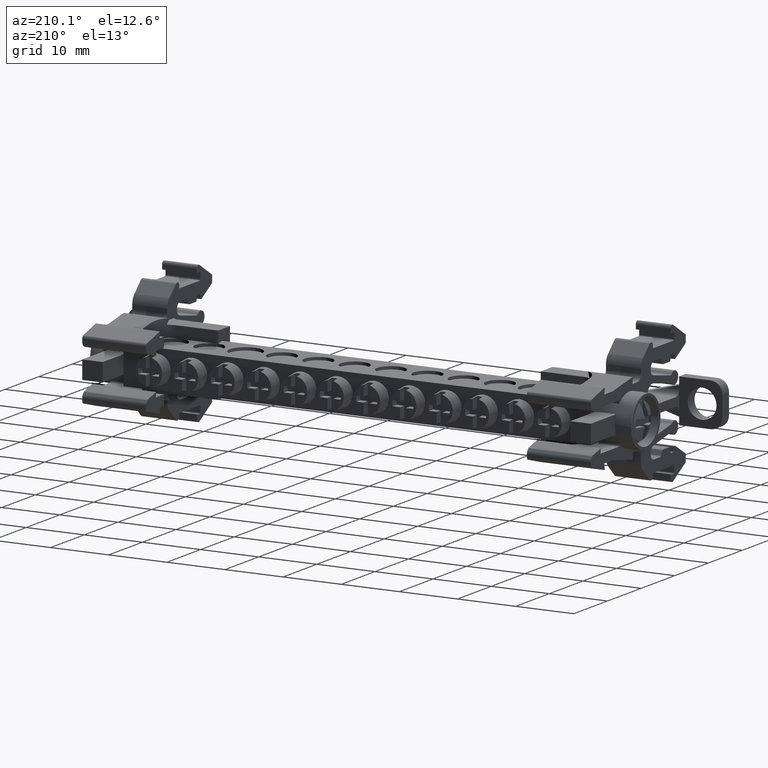
[diagram: clean part render]
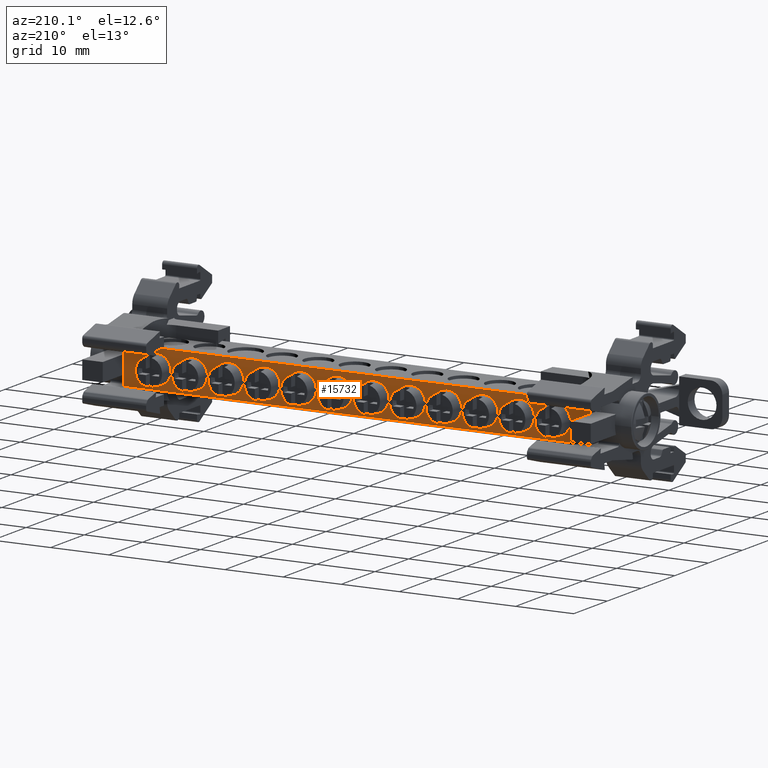
[diagram: same view with one face highlighted and labeled with its STEP entity id]
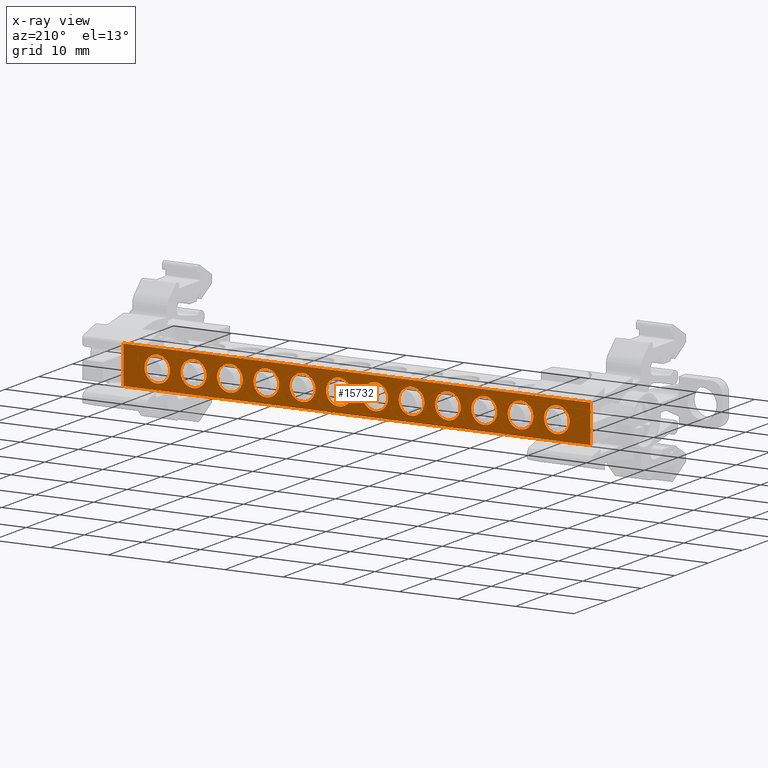
[diagram: x-ray of the same camera — body ghosted, the highlighted face saturated]
A machine part, auxiliary view. The second image highlights one B-rep face of the part: STEP entity #15732.
The next image is the same camera in x-ray: the body ghosted, the highlighted face saturated — about 0% of this face is hidden behind the body in this view.
In plain terms, the highlighted planar face has unit normal (0, -1, -0).
Its self-contained STEP definition (entity closure, byte-faithful):
#62 = EDGE_CURVE ( 'NONE', #4079, #7022, #719, .T. ) ;
#69 = EDGE_CURVE ( 'NONE', #4053, #4079, #8789, .T. ) ;
#73 = EDGE_CURVE ( 'NONE', #7029, #7011, #8797, .T. ) ;
#93 = EDGE_CURVE ( 'NONE', #7013, #7044, #730, .T. ) ;
#97 = EDGE_CURVE ( 'NONE', #7020, #7042, #8791, .T. ) ;
#99 = EDGE_CURVE ( 'NONE', #7012, #7013, #8795, .T. ) ;
#106 = EDGE_CURVE ( 'NONE', #4077, #7039, #8796, .T. ) ;
#110 = EDGE_CURVE ( 'NONE', #7039, #7026, #718, .T. ) ;
#113 = EDGE_CURVE ( 'NONE', #7011, #7016, #720, .T. ) ;
#122 = EDGE_CURVE ( 'NONE', #7051, #4072, #8780, .T. ) ;
#125 = EDGE_CURVE ( 'NONE', #4088, #6999, #8781, .T. ) ;
#131 = EDGE_CURVE ( 'NONE', #4072, #7000, #731, .T. ) ;
#135 = EDGE_CURVE ( 'NONE', #7004, #4085, #8787, .T. ) ;
#140 = EDGE_CURVE ( 'NONE', #7027, #7037, #8798, .T. ) ;
#141 = EDGE_CURVE ( 'NONE', #4085, #7034, #732, .T. ) ;
#148 = EDGE_CURVE ( 'NONE', #7037, #6982, #721, .T. ) ;
#149 = EDGE_CURVE ( 'NONE', #7024, #7027, #8782, .T. ) ;
#154 = EDGE_CURVE ( 'NONE', #7053, #6997, #723, .T. ) ;
#155 = EDGE_CURVE ( 'NONE', #7042, #7033, #724, .T. ) ;
#156 = EDGE_CURVE ( 'NONE', #6982, #7024, #725, .T. ) ;
#159 = EDGE_CURVE ( 'NONE', #7043, #6984, #726, .T. ) ;
#163 = EDGE_CURVE ( 'NONE', #7057, #7053, #8788, .T. ) ;
#178 = EDGE_CURVE ( 'NONE', #6984, #4088, #727, .T. ) ;
#574 =( BOUNDED_CURVE ( )  B_SPLINE_CURVE ( 3, ( #8261, #8312, #8317, #8314 ),
 .UNSPECIFIED., .F., .T. ) 
 B_SPLINE_CURVE_WITH_KNOTS ( ( 4, 4 ),
 ( 0.0000000000000000000, 1.000000000000000000 ),
 .UNSPECIFIED. ) 
 CURVE ( )  GEOMETRIC_REPRESENTATION_ITEM ( )  RATIONAL_B_SPLINE_CURVE ( ( 1.000000000000000000, 0.8047378545793121300, 0.8047378545793121300, 1.000000000000000000 ) ) 
 REPRESENTATION_ITEM ( '' )  );
#575 =( BOUNDED_CURVE ( )  B_SPLINE_CURVE ( 3, ( #7207, #7198, #7177, #7214 ),
 .UNSPECIFIED., .F., .T. ) 
 B_SPLINE_CURVE_WITH_KNOTS ( ( 4, 4 ),
 ( 0.0000000000000000000, 1.000000000000000000 ),
 .UNSPECIFIED. ) 
 CURVE ( )  GEOMETRIC_REPRESENTATION_ITEM ( )  RATIONAL_B_SPLINE_CURVE ( ( 1.000000000000000000, 0.8047378545793240100, 0.8047378545793240100, 1.000000000000000000 ) ) 
 REPRESENTATION_ITEM ( '' )  );
#577 =( BOUNDED_CURVE ( )  B_SPLINE_CURVE ( 3, ( #7410, #7411, #7404, #7422 ),
 .UNSPECIFIED., .F., .T. ) 
 B_SPLINE_CURVE_WITH_KNOTS ( ( 4, 4 ),
 ( 0.0000000000000000000, 1.000000000000000000 ),
 .UNSPECIFIED. ) 
 CURVE ( )  GEOMETRIC_REPRESENTATION_ITEM ( )  RATIONAL_B_SPLINE_CURVE ( ( 1.000000000000000000, 0.8047378545793180100, 0.8047378545793180100, 1.000000000000000000 ) ) 
 REPRESENTATION_ITEM ( '' )  );
#579 =( BOUNDED_CURVE ( )  B_SPLINE_CURVE ( 3, ( #10960, #10922, #10955, #10946 ),
 .UNSPECIFIED., .F., .T. ) 
 B_SPLINE_CURVE_WITH_KNOTS ( ( 4, 4 ),
 ( 0.0000000000000000000, 1.000000000000000000 ),
 .UNSPECIFIED. ) 
 CURVE ( )  GEOMETRIC_REPRESENTATION_ITEM ( )  RATIONAL_B_SPLINE_CURVE ( ( 1.000000000000000000, 0.3333333333333370900, 0.3333333333333370900, 1.000000000000000000 ) ) 
 REPRESENTATION_ITEM ( '' )  );
#580 =( BOUNDED_CURVE ( )  B_SPLINE_CURVE ( 3, ( #7162, #7137, #7125, #7138 ),
 .UNSPECIFIED., .F., .T. ) 
 B_SPLINE_CURVE_WITH_KNOTS ( ( 4, 4 ),
 ( 0.0000000000000000000, 1.000000000000000000 ),
 .UNSPECIFIED. ) 
 CURVE ( )  GEOMETRIC_REPRESENTATION_ITEM ( )  RATIONAL_B_SPLINE_CURVE ( ( 1.000000000000000000, 0.8047378545793240100, 0.8047378545793240100, 1.000000000000000000 ) ) 
 REPRESENTATION_ITEM ( '' )  );
#584 =( BOUNDED_CURVE ( )  B_SPLINE_CURVE ( 3, ( #8421, #8394, #8390, #8336 ),
 .UNSPECIFIED., .F., .T. ) 
 B_SPLINE_CURVE_WITH_KNOTS ( ( 4, 4 ),
 ( 0.0000000000000000000, 1.000000000000000000 ),
 .UNSPECIFIED. ) 
 CURVE ( )  GEOMETRIC_REPRESENTATION_ITEM ( )  RATIONAL_B_SPLINE_CURVE ( ( 1.000000000000000000, 0.8047378545793195700, 0.8047378545793195700, 1.000000000000000000 ) ) 
 REPRESENTATION_ITEM ( '' )  );
#586 =( BOUNDED_CURVE ( )  B_SPLINE_CURVE ( 3, ( #8380, #8340, #8403, #8370 ),
 .UNSPECIFIED., .F., .T. ) 
 B_SPLINE_CURVE_WITH_KNOTS ( ( 4, 4 ),
 ( 0.0000000000000000000, 1.000000000000000000 ),
 .UNSPECIFIED. ) 
 CURVE ( )  GEOMETRIC_REPRESENTATION_ITEM ( )  RATIONAL_B_SPLINE_CURVE ( ( 1.000000000000000000, 0.8047378545793240100, 0.8047378545793240100, 1.000000000000000000 ) ) 
 REPRESENTATION_ITEM ( '' )  );
#588 =( BOUNDED_CURVE ( )  B_SPLINE_CURVE ( 3, ( #7273, #7283, #7302, #7275 ),
 .UNSPECIFIED., .F., .T. ) 
 B_SPLINE_CURVE_WITH_KNOTS ( ( 4, 4 ),
 ( 0.0000000000000000000, 1.000000000000000000 ),
 .UNSPECIFIED. ) 
 CURVE ( )  GEOMETRIC_REPRESENTATION_ITEM ( )  RATIONAL_B_SPLINE_CURVE ( ( 1.000000000000000000, 0.8047378545793182300, 0.8047378545793182300, 1.000000000000000000 ) ) 
 REPRESENTATION_ITEM ( '' )  );
#607 =( BOUNDED_CURVE ( )  B_SPLINE_CURVE ( 3, ( #10926, #10976, #10993, #11016, #11008, #10997, #11006 ),
 .UNSPECIFIED., .F., .T. ) 
 B_SPLINE_CURVE_WITH_KNOTS ( ( 4, 3, 4 ),
 ( 0.0000000000000000000, 0.5000000000000000000, 1.000000000000000000 ),
 .UNSPECIFIED. ) 
 CURVE ( )  GEOMETRIC_REPRESENTATION_ITEM ( )  RATIONAL_B_SPLINE_CURVE ( ( 1.000000000000000000, 0.8047378531765705400, 0.8047378531765705400, 1.000000000000000000, 0.8047378531765705400, 0.8047378531765705400, 1.000000000000000000 ) ) 
 REPRESENTATION_ITEM ( '' )  );
#609 =( BOUNDED_CURVE ( )  B_SPLINE_CURVE ( 3, ( #10770, #10846, #10832, #10847, #10844, #10840, #10845 ),
 .UNSPECIFIED., .F., .T. ) 
 B_SPLINE_CURVE_WITH_KNOTS ( ( 4, 3, 4 ),
 ( 0.0000000000000000000, 0.5000000000000000000, 1.000000000000000000 ),
 .UNSPECIFIED. ) 
 CURVE ( )  GEOMETRIC_REPRESENTATION_ITEM ( )  RATIONAL_B_SPLINE_CURVE ( ( 1.000000000000000000, 0.8047378531765705400, 0.8047378531765705400, 1.000000000000000000, 0.8047378531765705400, 0.8047378531765705400, 1.000000000000000000 ) ) 
 REPRESENTATION_ITEM ( '' )  );
#611 =( BOUNDED_CURVE ( )  B_SPLINE_CURVE ( 3, ( #7168, #7126, #7212, #7178 ),
 .UNSPECIFIED., .F., .T. ) 
 B_SPLINE_CURVE_WITH_KNOTS ( ( 4, 4 ),
 ( 0.0000000000000000000, 1.000000000000000000 ),
 .UNSPECIFIED. ) 
 CURVE ( )  GEOMETRIC_REPRESENTATION_ITEM ( )  RATIONAL_B_SPLINE_CURVE ( ( 1.000000000000000000, 0.8047378545793152400, 0.8047378545793152400, 1.000000000000000000 ) ) 
 REPRESENTATION_ITEM ( '' )  );
#622 =( BOUNDED_CURVE ( )  B_SPLINE_CURVE ( 3, ( #11064, #11072, #11085, #11092 ),
 .UNSPECIFIED., .F., .T. ) 
 B_SPLINE_CURVE_WITH_KNOTS ( ( 4, 4 ),
 ( 0.0000000000000000000, 1.000000000000000000 ),
 .UNSPECIFIED. ) 
 CURVE ( )  GEOMETRIC_REPRESENTATION_ITEM ( )  RATIONAL_B_SPLINE_CURVE ( ( 1.000000000000000000, 0.3333333333333370900, 0.3333333333333370900, 1.000000000000000000 ) ) 
 REPRESENTATION_ITEM ( '' )  );
#718 =( BOUNDED_CURVE ( )  B_SPLINE_CURVE ( 3, ( #22044, #22047, #22048, #22050 ),
 .UNSPECIFIED., .F., .T. ) 
 B_SPLINE_CURVE_WITH_KNOTS ( ( 4, 4 ),
 ( 0.0000000000000000000, 1.000000000000000000 ),
 .UNSPECIFIED. ) 
 CURVE ( )  GEOMETRIC_REPRESENTATION_ITEM ( )  RATIONAL_B_SPLINE_CURVE ( ( 1.000000000000000000, 0.8047378536718963200, 0.8047378536718963200, 1.000000000000000000 ) ) 
 REPRESENTATION_ITEM ( '' )  );
#719 =( BOUNDED_CURVE ( )  B_SPLINE_CURVE ( 3, ( #21850, #21865, #21851, #21852 ),
 .UNSPECIFIED., .F., .T. ) 
 B_SPLINE_CURVE_WITH_KNOTS ( ( 4, 4 ),
 ( 0.0000000000000000000, 1.000000000000000000 ),
 .UNSPECIFIED. ) 
 CURVE ( )  GEOMETRIC_REPRESENTATION_ITEM ( )  RATIONAL_B_SPLINE_CURVE ( ( 1.000000000000000000, 0.8047378536717346700, 0.8047378536717346700, 1.000000000000000000 ) ) 
 REPRESENTATION_ITEM ( '' )  );
#720 =( BOUNDED_CURVE ( )  B_SPLINE_CURVE ( 3, ( #22064, #22115, #22097, #22114 ),
 .UNSPECIFIED., .F., .T. ) 
 B_SPLINE_CURVE_WITH_KNOTS ( ( 4, 4 ),
 ( 0.0000000000000000000, 1.000000000000000000 ),
 .UNSPECIFIED. ) 
 CURVE ( )  GEOMETRIC_REPRESENTATION_ITEM ( )  RATIONAL_B_SPLINE_CURVE ( ( 1.000000000000000000, 0.8047378536717184600, 0.8047378536717184600, 1.000000000000000000 ) ) 
 REPRESENTATION_ITEM ( '' )  );
#721 =( BOUNDED_CURVE ( )  B_SPLINE_CURVE ( 3, ( #22234, #22218, #22215, #22236 ),
 .UNSPECIFIED., .F., .T. ) 
 B_SPLINE_CURVE_WITH_KNOTS ( ( 4, 4 ),
 ( 0.0000000000000000000, 1.000000000000000000 ),
 .UNSPECIFIED. ) 
 CURVE ( )  GEOMETRIC_REPRESENTATION_ITEM ( )  RATIONAL_B_SPLINE_CURVE ( ( 1.000000000000000000, 0.8047378536717271200, 0.8047378536717271200, 1.000000000000000000 ) ) 
 REPRESENTATION_ITEM ( '' )  );
#723 =( BOUNDED_CURVE ( )  B_SPLINE_CURVE ( 3, ( #22012, #22147, #22204, #21682 ),
 .UNSPECIFIED., .F., .T. ) 
 B_SPLINE_CURVE_WITH_KNOTS ( ( 4, 4 ),
 ( 0.0000000000000000000, 1.000000000000000000 ),
 .UNSPECIFIED. ) 
 CURVE ( )  GEOMETRIC_REPRESENTATION_ITEM ( )  RATIONAL_B_SPLINE_CURVE ( ( 1.000000000000000000, 0.8047378536718978700, 0.8047378536718978700, 1.000000000000000000 ) ) 
 REPRESENTATION_ITEM ( '' )  );
#724 =( BOUNDED_CURVE ( )  B_SPLINE_CURVE ( 3, ( #21212, #21210, #21232, #21244 ),
 .UNSPECIFIED., .F., .T. ) 
 B_SPLINE_CURVE_WITH_KNOTS ( ( 4, 4 ),
 ( 0.0000000000000000000, 1.000000000000000000 ),
 .UNSPECIFIED. ) 
 CURVE ( )  GEOMETRIC_REPRESENTATION_ITEM ( )  RATIONAL_B_SPLINE_CURVE ( ( 1.000000000000000000, 0.8047378536718948800, 0.8047378536718948800, 1.000000000000000000 ) ) 
 REPRESENTATION_ITEM ( '' )  );
#725 =( BOUNDED_CURVE ( )  B_SPLINE_CURVE ( 3, ( #21218, #21214, #21230, #21220 ),
 .UNSPECIFIED., .F., .T. ) 
 B_SPLINE_CURVE_WITH_KNOTS ( ( 4, 4 ),
 ( 0.0000000000000000000, 1.000000000000000000 ),
 .UNSPECIFIED. ) 
 CURVE ( )  GEOMETRIC_REPRESENTATION_ITEM ( )  RATIONAL_B_SPLINE_CURVE ( ( 1.000000000000000000, 0.8047378545793224500, 0.8047378545793224500, 1.000000000000000000 ) ) 
 REPRESENTATION_ITEM ( '' )  );
#726 =( BOUNDED_CURVE ( )  B_SPLINE_CURVE ( 3, ( #21242, #21217, #21216, #21213 ),
 .UNSPECIFIED., .F., .T. ) 
 B_SPLINE_CURVE_WITH_KNOTS ( ( 4, 4 ),
 ( 0.0000000000000000000, 1.000000000000000000 ),
 .UNSPECIFIED. ) 
 CURVE ( )  GEOMETRIC_REPRESENTATION_ITEM ( )  RATIONAL_B_SPLINE_CURVE ( ( 1.000000000000000000, 0.8047378536717273400, 0.8047378536717273400, 1.000000000000000000 ) ) 
 REPRESENTATION_ITEM ( '' )  );
#727 =( BOUNDED_CURVE ( )  B_SPLINE_CURVE ( 3, ( #19589, #19711, #19666, #19759 ),
 .UNSPECIFIED., .F., .T. ) 
 B_SPLINE_CURVE_WITH_KNOTS ( ( 4, 4 ),
 ( 0.0000000000000000000, 1.000000000000000000 ),
 .UNSPECIFIED. ) 
 CURVE ( )  GEOMETRIC_REPRESENTATION_ITEM ( )  RATIONAL_B_SPLINE_CURVE ( ( 1.000000000000000000, 0.8047378545793195700, 0.8047378545793195700, 1.000000000000000000 ) ) 
 REPRESENTATION_ITEM ( '' )  );
#730 =( BOUNDED_CURVE ( )  B_SPLINE_CURVE ( 3, ( #22013, #22019, #21992, #21988 ),
 .UNSPECIFIED., .F., .T. ) 
 B_SPLINE_CURVE_WITH_KNOTS ( ( 4, 4 ),
 ( 0.0000000000000000000, 1.000000000000000000 ),
 .UNSPECIFIED. ) 
 CURVE ( )  GEOMETRIC_REPRESENTATION_ITEM ( )  RATIONAL_B_SPLINE_CURVE ( ( 1.000000000000000000, 0.8047378536717184600, 0.8047378536717184600, 1.000000000000000000 ) ) 
 REPRESENTATION_ITEM ( '' )  );
#731 =( BOUNDED_CURVE ( )  B_SPLINE_CURVE ( 3, ( #22130, #22131, #22134, #22136 ),
 .UNSPECIFIED., .F., .T. ) 
 B_SPLINE_CURVE_WITH_KNOTS ( ( 4, 4 ),
 ( 0.0000000000000000000, 1.000000000000000000 ),
 .UNSPECIFIED. ) 
 CURVE ( )  GEOMETRIC_REPRESENTATION_ITEM ( )  RATIONAL_B_SPLINE_CURVE ( ( 1.000000000000000000, 0.8047378536718992100, 0.8047378536718992100, 1.000000000000000000 ) ) 
 REPRESENTATION_ITEM ( '' )  );
#732 =( BOUNDED_CURVE ( )  B_SPLINE_CURVE ( 3, ( #22198, #22192, #22183, #22194 ),
 .UNSPECIFIED., .F., .T. ) 
 B_SPLINE_CURVE_WITH_KNOTS ( ( 4, 4 ),
 ( 0.0000000000000000000, 1.000000000000000000 ),
 .UNSPECIFIED. ) 
 CURVE ( )  GEOMETRIC_REPRESENTATION_ITEM ( )  RATIONAL_B_SPLINE_CURVE ( ( 1.000000000000000000, 0.8047378536719023100, 0.8047378536719023100, 1.000000000000000000 ) ) 
 REPRESENTATION_ITEM ( '' )  );
#2797 = VERTEX_POINT ( 'NONE', #5344 ) ;
#2803 = VERTEX_POINT ( 'NONE', #5451 ) ;
#2864 = VERTEX_POINT ( 'NONE', #5488 ) ;
#2880 = VERTEX_POINT ( 'NONE', #5478 ) ;
#4047 = VERTEX_POINT ( 'NONE', #25487 ) ;
#4048 = VERTEX_POINT ( 'NONE', #25488 ) ;
#4053 = VERTEX_POINT ( 'NONE', #25478 ) ;
#4071 = VERTEX_POINT ( 'NONE', #25463 ) ;
#4072 = VERTEX_POINT ( 'NONE', #25490 ) ;
#4075 = VERTEX_POINT ( 'NONE', #25470 ) ;
#4077 = VERTEX_POINT ( 'NONE', #25462 ) ;
#4079 = VERTEX_POINT ( 'NONE', #25479 ) ;
#4085 = VERTEX_POINT ( 'NONE', #25474 ) ;
#4088 = VERTEX_POINT ( 'NONE', #25481 ) ;
#4582 = AXIS2_PLACEMENT_3D ( 'NONE', #20030, #20055, #20062 ) ;
#5344 = CARTESIAN_POINT ( 'NONE',  ( -67.31633741415895100, -90.50918132654970800, 215.9713441743226400 ) ) ;
#5451 = CARTESIAN_POINT ( 'NONE',  ( -104.8163374141314000, -90.50918132654997800, 215.9713441743227200 ) ) ;
#5478 = CARTESIAN_POINT ( 'NONE',  ( -117.3163374141314300, -90.50918132655009200, 215.9713441743226400 ) ) ;
#5488 = CARTESIAN_POINT ( 'NONE',  ( -92.31633741412304100, -90.50918132654987900, 215.9713441743228700 ) ) ;
#6636 = VERTEX_POINT ( 'NONE', #22474 ) ;
#6641 = VERTEX_POINT ( 'NONE', #22473 ) ;
#6646 = VERTEX_POINT ( 'NONE', #22476 ) ;
#6653 = VERTEX_POINT ( 'NONE', #22490 ) ;
#6673 = VERTEX_POINT ( 'NONE', #22504 ) ;
#6681 = VERTEX_POINT ( 'NONE', #22506 ) ;
#6682 = VERTEX_POINT ( 'NONE', #22515 ) ;
#6689 = VERTEX_POINT ( 'NONE', #22532 ) ;
#6713 = VERTEX_POINT ( 'NONE', #22500 ) ;
#6738 = VERTEX_POINT ( 'NONE', #22546 ) ;
#6982 = VERTEX_POINT ( 'NONE', #22623 ) ;
#6984 = VERTEX_POINT ( 'NONE', #22618 ) ;
#6997 = VERTEX_POINT ( 'NONE', #22639 ) ;
#6999 = VERTEX_POINT ( 'NONE', #22632 ) ;
#7000 = VERTEX_POINT ( 'NONE', #22652 ) ;
#7004 = VERTEX_POINT ( 'NONE', #22653 ) ;
#7011 = VERTEX_POINT ( 'NONE', #22668 ) ;
#7012 = VERTEX_POINT ( 'NONE', #22664 ) ;
#7013 = VERTEX_POINT ( 'NONE', #22667 ) ;
#7016 = VERTEX_POINT ( 'NONE', #22669 ) ;
#7020 = VERTEX_POINT ( 'NONE', #22656 ) ;
#7022 = VERTEX_POINT ( 'NONE', #22657 ) ;
#7024 = VERTEX_POINT ( 'NONE', #22659 ) ;
#7026 = VERTEX_POINT ( 'NONE', #22646 ) ;
#7027 = VERTEX_POINT ( 'NONE', #22650 ) ;
#7029 = VERTEX_POINT ( 'NONE', #22648 ) ;
#7033 = VERTEX_POINT ( 'NONE', #22647 ) ;
#7034 = VERTEX_POINT ( 'NONE', #22658 ) ;
#7037 = VERTEX_POINT ( 'NONE', #22689 ) ;
#7039 = VERTEX_POINT ( 'NONE', #22700 ) ;
#7042 = VERTEX_POINT ( 'NONE', #22662 ) ;
#7043 = VERTEX_POINT ( 'NONE', #22695 ) ;
#7044 = VERTEX_POINT ( 'NONE', #22670 ) ;
#7051 = VERTEX_POINT ( 'NONE', #22677 ) ;
#7053 = VERTEX_POINT ( 'NONE', #22679 ) ;
#7057 = VERTEX_POINT ( 'NONE', #22681 ) ;
#7124 = CARTESIAN_POINT ( 'NONE',  ( -61.34468505365217100, -90.50918132888675400, 214.8607131188005900 ) ) ;
#7125 = CARTESIAN_POINT ( 'NONE',  ( -73.56633741852950000, -90.50918132825012200, 217.2631839228839400 ) ) ;
#7126 = CARTESIAN_POINT ( 'NONE',  ( -68.22980606582511600, -90.50918132825012200, 218.1766525684164200 ) ) ;
#7127 = CARTESIAN_POINT ( 'NONE',  ( -105.2581426966038100, -90.50918132900503100, 214.6160856034295500 ) ) ;
#7132 = CARTESIAN_POINT ( 'NONE',  ( -63.27164581438639600, -90.50918132756920900, 213.7660618443453300 ) ) ;
#7133 = CARTESIAN_POINT ( 'NONE',  ( -104.8163395858700400, -90.50918132843855800, 215.6826699793373300 ) ) ;
#7134 = CARTESIAN_POINT ( 'NONE',  ( -105.0946850536516700, -90.50918132888701000, 214.8607131188004200 ) ) ;
#7137 = CARTESIAN_POINT ( 'NONE',  ( -74.47980606582510200, -90.50918132825023600, 218.1766525684163900 ) ) ;
#7138 = CARTESIAN_POINT ( 'NONE',  ( -73.56633741411701500, -90.50918132654980800, 215.9713441743226400 ) ) ;
#7139 = CARTESIAN_POINT ( 'NONE',  ( -105.6663903173342000, -90.50918132919385100, 214.2078441278875100 ) ) ;
#7140 = CARTESIAN_POINT ( 'NONE',  ( -105.9110196622872600, -90.50918132926464900, 214.0443907884865100 ) ) ;
#7143 = CARTESIAN_POINT ( 'NONE',  ( -106.4444169557698500, -90.50918132935908000, 213.8234550990180200 ) ) ;
#7146 = CARTESIAN_POINT ( 'NONE',  ( -106.7329750326327100, -90.50918132938265600, 213.7660596714146100 ) ) ;
#7148 = CARTESIAN_POINT ( 'NONE',  ( -61.91639031733442500, -90.50918132919365200, 214.2078441278877400 ) ) ;
#7149 = CARTESIAN_POINT ( 'NONE',  ( -104.8163374141314000, -90.50918132654997800, 215.9713441743227200 ) ) ;
#7150 = CARTESIAN_POINT ( 'NONE',  ( -107.0216458143864000, -90.50918132756955000, 213.7660618443453900 ) ) ;
#7153 = CARTESIAN_POINT ( 'NONE',  ( -61.12374002892111900, -90.50918132860358900, 215.3941102399460900 ) ) ;
#7154 = CARTESIAN_POINT ( 'NONE',  ( -62.98297503263271600, -90.50918132938244300, 213.7660596714146400 ) ) ;
#7156 = CARTESIAN_POINT ( 'NONE',  ( -62.69441695576989600, -90.50918132935885300, 213.8234550990181300 ) ) ;
#7159 = CARTESIAN_POINT ( 'NONE',  ( -61.06633958587076400, -90.50918132843835900, 215.6826699793373300 ) ) ;
#7160 = CARTESIAN_POINT ( 'NONE',  ( -104.8737400289204700, -90.50918132860378800, 215.3941102399460000 ) ) ;
#7161 = CARTESIAN_POINT ( 'NONE',  ( -61.06633741413200800, -90.50918132654960900, 215.9713441743225800 ) ) ;
#7162 = CARTESIAN_POINT ( 'NONE',  ( -75.77164581255583200, -90.50918132689014300, 218.1766525689760700 ) ) ;
#7163 = CARTESIAN_POINT ( 'NONE',  ( -61.50814269660422400, -90.50918132900480400, 214.6160856034297800 ) ) ;
#7168 = CARTESIAN_POINT ( 'NONE',  ( -69.52164581255584600, -90.50918132689004400, 218.1766525689521900 ) ) ;
#7169 = CARTESIAN_POINT ( 'NONE',  ( -62.16101966228741600, -90.50918132926445000, 214.0443907884866500 ) ) ;
#7170 = CARTESIAN_POINT ( 'NONE',  ( -119.5216458143864000, -90.50918132756963500, 213.7660618443452400 ) ) ;
#7176 = CARTESIAN_POINT ( 'NONE',  ( -118.9444169557699000, -90.50918132935915100, 213.8234550990179100 ) ) ;
#7177 = CARTESIAN_POINT ( 'NONE',  ( -92.31633741852957100, -90.50918132825005100, 217.2631839228841100 ) ) ;
#7178 = CARTESIAN_POINT ( 'NONE',  ( -67.31633741415895100, -90.50918132654970800, 215.9713441743226400 ) ) ;
#7183 = CARTESIAN_POINT ( 'NONE',  ( -117.3737400289204800, -90.50918132860387300, 215.3941102399459200 ) ) ;
#7184 = CARTESIAN_POINT ( 'NONE',  ( -67.31633741415895100, -90.50918132654970800, 215.9713441743226400 ) ) ;
#7186 = CARTESIAN_POINT ( 'NONE',  ( -117.5946850536516600, -90.50918132888703800, 214.8607131188003600 ) ) ;
#7189 = CARTESIAN_POINT ( 'NONE',  ( -117.3163374141314300, -90.50918132655009200, 215.9713441743226400 ) ) ;
#7191 = CARTESIAN_POINT ( 'NONE',  ( -118.1663903173341800, -90.50918132919393600, 214.2078441278874300 ) ) ;
#7193 = CARTESIAN_POINT ( 'NONE',  ( -67.31633958590369100, -90.50918132843848700, 215.6826699793420800 ) ) ;
#7194 = CARTESIAN_POINT ( 'NONE',  ( -67.59468505367289000, -90.50918132888686800, 214.8607131188130400 ) ) ;
#7198 = CARTESIAN_POINT ( 'NONE',  ( -93.22980606582513000, -90.50918132825019300, 218.1766525684165300 ) ) ;
#7200 = CARTESIAN_POINT ( 'NONE',  ( -119.2329750326326900, -90.50918132938275600, 213.7660596714145000 ) ) ;
#7201 = CARTESIAN_POINT ( 'NONE',  ( -67.75814269662065200, -90.50918132900491700, 214.6160856034429400 ) ) ;
#7202 = CARTESIAN_POINT ( 'NONE',  ( -68.16639031734328600, -90.50918132919373700, 214.2078441278999600 ) ) ;
#7203 = CARTESIAN_POINT ( 'NONE',  ( -67.37374002895009500, -90.50918132860368800, 215.3941102399543300 ) ) ;
#7205 = CARTESIAN_POINT ( 'NONE',  ( -68.41101966229305700, -90.50918132926455000, 214.0443907884972800 ) ) ;
#7206 = CARTESIAN_POINT ( 'NONE',  ( -68.94441695577108900, -90.50918132935896700, 213.8234550990240500 ) ) ;
#7207 = CARTESIAN_POINT ( 'NONE',  ( -94.52164581255583200, -90.50918132689020000, 218.1766525689474700 ) ) ;
#7210 = CARTESIAN_POINT ( 'NONE',  ( -117.3163395858700500, -90.50918132843864300, 215.6826699793372800 ) ) ;
#7211 = CARTESIAN_POINT ( 'NONE',  ( -118.4110196622872900, -90.50918132926474900, 214.0443907884864200 ) ) ;
#7212 = CARTESIAN_POINT ( 'NONE',  ( -67.31633741852950000, -90.50918132825000800, 217.2631839228839700 ) ) ;
#7214 = CARTESIAN_POINT ( 'NONE',  ( -92.31633741412304100, -90.50918132654987900, 215.9713441743228700 ) ) ;
#7216 = CARTESIAN_POINT ( 'NONE',  ( -117.7581426966038300, -90.50918132900510200, 214.6160856034295000 ) ) ;
#7217 = CARTESIAN_POINT ( 'NONE',  ( -98.56633958587438800, -90.50918132843851500, 215.6826699793380200 ) ) ;
#7218 = CARTESIAN_POINT ( 'NONE',  ( -69.52164581438640300, -90.50918132756930800, 213.7660618443452700 ) ) ;
#7219 = CARTESIAN_POINT ( 'NONE',  ( -92.59468505364520800, -90.50918132888692500, 214.8607131187967200 ) ) ;
#7220 = CARTESIAN_POINT ( 'NONE',  ( -69.23297503263270900, -90.50918132938255700, 213.7660596714175400 ) ) ;
#7221 = CARTESIAN_POINT ( 'NONE',  ( -92.37374002891145600, -90.50918132860371700, 215.3941102399435900 ) ) ;
#7222 = CARTESIAN_POINT ( 'NONE',  ( -98.84468505365440200, -90.50918132888695300, 214.8607131188021500 ) ) ;
#7229 = CARTESIAN_POINT ( 'NONE',  ( -100.1944169557700200, -90.50918132935903800, 213.8234550990188700 ) ) ;
#7230 = CARTESIAN_POINT ( 'NONE',  ( -92.31633741412304100, -90.50918132654987900, 215.9713441743228700 ) ) ;
#7232 = CARTESIAN_POINT ( 'NONE',  ( -100.4829750326327200, -90.50918132938262800, 213.7660596714149500 ) ) ;
#7233 = CARTESIAN_POINT ( 'NONE',  ( -100.7716458143863900, -90.50918132756947900, 213.7660618443453900 ) ) ;
#7241 = CARTESIAN_POINT ( 'NONE',  ( -93.94441695576949800, -90.50918132935903800, 213.8234550990163100 ) ) ;
#7244 = CARTESIAN_POINT ( 'NONE',  ( -99.00814269660601500, -90.50918132900498800, 214.6160856034313700 ) ) ;
#7245 = CARTESIAN_POINT ( 'NONE',  ( -92.31633958585976500, -90.50918132843850100, 215.6826699793360300 ) ) ;
#7247 = CARTESIAN_POINT ( 'NONE',  ( -92.75814269659868200, -90.50918132900497400, 214.6160856034256300 ) ) ;
#7250 = CARTESIAN_POINT ( 'NONE',  ( -98.56633741413497800, -90.50918132654992100, 215.9713441743227800 ) ) ;
#7251 = CARTESIAN_POINT ( 'NONE',  ( -99.41639031733538400, -90.50918132919378000, 214.2078441278891600 ) ) ;
#7253 = CARTESIAN_POINT ( 'NONE',  ( -98.62374002892430300, -90.50918132860375900, 215.3941102399471700 ) ) ;
#7255 = CARTESIAN_POINT ( 'NONE',  ( -93.41101966228552600, -90.50918132926459200, 214.0443907884833300 ) ) ;
#7256 = CARTESIAN_POINT ( 'NONE',  ( -94.52164581438640300, -90.50918132756945100, 213.7660618443454700 ) ) ;
#7257 = CARTESIAN_POINT ( 'NONE',  ( -99.66101966228801200, -90.50918132926459200, 214.0443907884879600 ) ) ;
#7258 = CARTESIAN_POINT ( 'NONE',  ( -94.23297503263270900, -90.50918132938259900, 213.7660596714137900 ) ) ;
#7261 = CARTESIAN_POINT ( 'NONE',  ( -93.16639031733142000, -90.50918132919378000, 214.2078441278838700 ) ) ;
#7273 = CARTESIAN_POINT ( 'NONE',  ( -100.7716458125558600, -90.50918132689022900, 218.1766525689282300 ) ) ;
#7275 = CARTESIAN_POINT ( 'NONE',  ( -98.56633741413497800, -90.50918132654992100, 215.9713441743227800 ) ) ;
#7283 = CARTESIAN_POINT ( 'NONE',  ( -99.47980606582515900, -90.50918132825020700, 218.1766525684165000 ) ) ;
#7302 = CARTESIAN_POINT ( 'NONE',  ( -98.56633741852951400, -90.50918132825009400, 217.2631839228840800 ) ) ;
#7404 = CARTESIAN_POINT ( 'NONE',  ( -111.0663374185295000, -90.50918132825010800, 217.2631839228839400 ) ) ;
#7410 = CARTESIAN_POINT ( 'NONE',  ( -113.2716458125548200, -90.50918132689030000, 218.1766525689452000 ) ) ;
#7411 = CARTESIAN_POINT ( 'NONE',  ( -111.9798060658250700, -90.50918132825025000, 218.1766525684163900 ) ) ;
#7422 = CARTESIAN_POINT ( 'NONE',  ( -111.0663374141852600, -90.50918132655000600, 215.9713441743226400 ) ) ;
#8071 = CARTESIAN_POINT ( 'NONE',  ( -112.1610196622985700, -90.50918132926464900, 214.0443907885076600 ) ) ;
#8076 = CARTESIAN_POINT ( 'NONE',  ( -111.1237400289784600, -90.50918132860377300, 215.3941102399622900 ) ) ;
#8078 = CARTESIAN_POINT ( 'NONE',  ( -113.2716458143863900, -90.50918132756955000, 213.7660618443452700 ) ) ;
#8091 = CARTESIAN_POINT ( 'NONE',  ( -111.0663395859358200, -90.50918132843853000, 215.6826699793466600 ) ) ;
#8093 = CARTESIAN_POINT ( 'NONE',  ( -112.9829750326326900, -90.50918132938265600, 213.7660596714205200 ) ) ;
#8099 = CARTESIAN_POINT ( 'NONE',  ( -111.9163903173520300, -90.50918132919383700, 214.2078441279119000 ) ) ;
#8101 = CARTESIAN_POINT ( 'NONE',  ( -111.3446850536931700, -90.50918132888701000, 214.8607131188251500 ) ) ;
#8116 = CARTESIAN_POINT ( 'NONE',  ( -111.0663374141852600, -90.50918132655000600, 215.9713441743226400 ) ) ;
#8132 = CARTESIAN_POINT ( 'NONE',  ( -111.5081426966367700, -90.50918132900503100, 214.6160856034557900 ) ) ;
#8139 = CARTESIAN_POINT ( 'NONE',  ( -112.6944169557722700, -90.50918132935903800, 213.8234550990299000 ) ) ;
#8219 = CARTESIAN_POINT ( 'NONE',  ( -126.3488746720954600, -90.50918132935927900, 213.8234550988448200 ) ) ;
#8222 = CARTESIAN_POINT ( 'NONE',  ( -127.5351489301514600, -90.50918132900525800, 214.6160856009547000 ) ) ;
#8235 = CARTESIAN_POINT ( 'NONE',  ( -126.0603165956868400, -90.50918132938285500, 213.7660596714191000 ) ) ;
#8238 = CARTESIAN_POINT ( 'NONE',  ( -127.1269013095704400, -90.50918132919407800, 214.2078441265557600 ) ) ;
#8247 = CARTESIAN_POINT ( 'NONE',  ( -127.9769520421394300, -90.50918132843884200, 215.6826699743587000 ) ) ;
#8256 = CARTESIAN_POINT ( 'NONE',  ( -127.9769542152202600, -90.50918132655016300, 215.9713441688834600 ) ) ;
#8258 = CARTESIAN_POINT ( 'NONE',  ( -125.7716458143863700, -90.50918132756973500, 213.7660618443452700 ) ) ;
#8261 = CARTESIAN_POINT ( 'NONE',  ( -63.27164581255584600, -90.50918132688997300, 218.1766525689193400 ) ) ;
#8296 = CARTESIAN_POINT ( 'NONE',  ( -127.6986065732077500, -90.50918132888726600, 214.8607131156740300 ) ) ;
#8298 = CARTESIAN_POINT ( 'NONE',  ( -126.8822719648697600, -90.50918132926483400, 214.0443907876446600 ) ) ;
#8309 = CARTESIAN_POINT ( 'NONE',  ( -127.9195515985659200, -90.50918132860404300, 215.3941102355667300 ) ) ;
#8312 = CARTESIAN_POINT ( 'NONE',  ( -61.97980606582512300, -90.50918132825005100, 218.1766525684163000 ) ) ;
#8314 = CARTESIAN_POINT ( 'NONE',  ( -61.06633741413200800, -90.50918132654960900, 215.9713441743225800 ) ) ;
#8317 = CARTESIAN_POINT ( 'NONE',  ( -61.06633741852951400, -90.50918132824990900, 217.2631839228838500 ) ) ;
#8323 = CARTESIAN_POINT ( 'NONE',  ( -75.19441695576921300, -90.50918132935905200, 213.8234550990147800 ) ) ;
#8336 = CARTESIAN_POINT ( 'NONE',  ( -104.8163374141314000, -90.50918132654997800, 215.9713441743227200 ) ) ;
#8339 = CARTESIAN_POINT ( 'NONE',  ( -73.62374002890496200, -90.50918132860380200, 215.3941102399415100 ) ) ;
#8340 = CARTESIAN_POINT ( 'NONE',  ( -118.2298060658251300, -90.50918132825036400, 218.1766525684163000 ) ) ;
#8343 = CARTESIAN_POINT ( 'NONE',  ( -75.77164581438638900, -90.50918132756939400, 213.7660618443452400 ) ) ;
#8348 = CARTESIAN_POINT ( 'NONE',  ( -75.48297503263269400, -90.50918132938267000, 213.7660596714129000 ) ) ;
#8357 = CARTESIAN_POINT ( 'NONE',  ( -74.41639031732943000, -90.50918132919385100, 214.2078441278809500 ) ) ;
#8365 = CARTESIAN_POINT ( 'NONE',  ( -73.56633958585246100, -90.50918132843858600, 215.6826699793347500 ) ) ;
#8370 = CARTESIAN_POINT ( 'NONE',  ( -117.3163374141314300, -90.50918132655009200, 215.9713441743226400 ) ) ;
#8380 = CARTESIAN_POINT ( 'NONE',  ( -119.5216458125548900, -90.50918132689038500, 218.1766525689260700 ) ) ;
#8390 = CARTESIAN_POINT ( 'NONE',  ( -104.8163374185295600, -90.50918132825013600, 217.2631839228840500 ) ) ;
#8394 = CARTESIAN_POINT ( 'NONE',  ( -105.7298060658251000, -90.50918132825023600, 218.1766525684164200 ) ) ;
#8397 = CARTESIAN_POINT ( 'NONE',  ( -74.00814269659501600, -90.50918132900506000, 214.6160856034224800 ) ) ;
#8399 = CARTESIAN_POINT ( 'NONE',  ( -73.84468505364056100, -90.50918132888696700, 214.8607131187936300 ) ) ;
#8403 = CARTESIAN_POINT ( 'NONE',  ( -117.3163374185295400, -90.50918132825022200, 217.2631839228838800 ) ) ;
#8410 = CARTESIAN_POINT ( 'NONE',  ( -73.56633741411701500, -90.50918132654980800, 215.9713441743226400 ) ) ;
#8419 = CARTESIAN_POINT ( 'NONE',  ( -74.66101966228421800, -90.50918132926466300, 214.0443907884807400 ) ) ;
#8421 = CARTESIAN_POINT ( 'NONE',  ( -107.0216458125548400, -90.50918132689028500, 218.1766525689389500 ) ) ;
#8780 = B_SPLINE_CURVE_WITH_KNOTS ( 'NONE', 3,
 ( #22095, #22078, #22086, #22087, #22100, #22109, #22108, #22103, #22088, #22079 ),
 .UNSPECIFIED., .F., .F.,
 ( 4, 2, 2, 2, 4 ),
 ( 0.0000000000000000000, 0.2500000000000000000, 0.5000000000000000000, 0.7500000000000000000, 1.000000000000000000 ),
 .UNSPECIFIED. ) ;
#8781 = B_SPLINE_CURVE_WITH_KNOTS ( 'NONE', 3,
 ( #22138, #22125, #22145, #22162, #22127, #22126, #22153, #22141, #22122, #22129 ),
 .UNSPECIFIED., .F., .F.,
 ( 4, 2, 2, 2, 4 ),
 ( 0.0000000000000000000, 0.2499999999999972200, 0.4999999999999944500, 0.7499999999999916700, 1.000000000000000000 ),
 .UNSPECIFIED. ) ;
#8782 = B_SPLINE_CURVE_WITH_KNOTS ( 'NONE', 3,
 ( #22233, #22224, #22225, #22221, #22238, #22239, #22231, #22240, #22226, #22227 ),
 .UNSPECIFIED., .F., .F.,
 ( 4, 2, 2, 2, 4 ),
 ( 0.0000000000000000000, 0.2500000000000000000, 0.5000000000000000000, 0.7500000000000000000, 1.000000000000000000 ),
 .UNSPECIFIED. ) ;
#8787 = B_SPLINE_CURVE_WITH_KNOTS ( 'NONE', 3,
 ( #22156, #22160, #22161, #22163, #22164, #22165, #22210, #22200, #22174, #22178 ),
 .UNSPECIFIED., .F., .F.,
 ( 4, 2, 2, 2, 4 ),
 ( 0.0000000000000000000, 0.2500000000000000000, 0.5000000000000000000, 0.7500000000000000000, 1.000000000000000000 ),
 .UNSPECIFIED. ) ;
#8788 = B_SPLINE_CURVE_WITH_KNOTS ( 'NONE', 3,
 ( #21228, #21246, #21224, #21235, #21208, #21225, #21231, #21238, #21226, #21229 ),
 .UNSPECIFIED., .F., .F.,
 ( 4, 2, 2, 2, 4 ),
 ( 0.0000000000000000000, 0.2500000000000000000, 0.5000000000000000000, 0.7500000000000000000, 1.000000000000000000 ),
 .UNSPECIFIED. ) ;
#8789 = B_SPLINE_CURVE_WITH_KNOTS ( 'NONE', 3,
 ( #21895, #21907, #21899, #21900, #21886, #21902, #21903, #21881, #21878, #21908 ),
 .UNSPECIFIED., .F., .F.,
 ( 4, 2, 2, 2, 4 ),
 ( 0.0000000000000000000, 0.2500000000000000000, 0.5000000000000000000, 0.7500000000000000000, 1.000000000000000000 ),
 .UNSPECIFIED. ) ;
#8791 = B_SPLINE_CURVE_WITH_KNOTS ( 'NONE', 3,
 ( #22031, #22018, #21995, #22022, #22025, #21997, #21989, #21998, #21999, #22024 ),
 .UNSPECIFIED., .F., .F.,
 ( 4, 2, 2, 2, 4 ),
 ( 0.0000000000000000000, 0.2500000000000000000, 0.5000000000000000000, 0.7500000000000000000, 1.000000000000000000 ),
 .UNSPECIFIED. ) ;
#8795 = B_SPLINE_CURVE_WITH_KNOTS ( 'NONE', 3,
 ( #22032, #22014, #21994, #22030, #22007, #22009, #22015, #22008, #22016, #22010 ),
 .UNSPECIFIED., .F., .F.,
 ( 4, 2, 2, 2, 4 ),
 ( 0.0000000000000000000, 0.2500000000000000000, 0.5000000000000000000, 0.7500000000000000000, 1.000000000000000000 ),
 .UNSPECIFIED. ) ;
#8796 = B_SPLINE_CURVE_WITH_KNOTS ( 'NONE', 3,
 ( #22052, #22070, #22073, #22054, #22038, #22046, #22042, #22049, #22055, #22056 ),
 .UNSPECIFIED., .F., .F.,
 ( 4, 2, 2, 2, 4 ),
 ( 0.0000000000000000000, 0.2500000000000000000, 0.5000000000000000000, 0.7500000000000000000, 1.000000000000000000 ),
 .UNSPECIFIED. ) ;
#8797 = B_SPLINE_CURVE_WITH_KNOTS ( 'NONE', 3,
 ( #21917, #21919, #21929, #21943, #21925, #21932, #21946, #21909, #21910, #21915 ),
 .UNSPECIFIED., .F., .F.,
 ( 4, 2, 2, 2, 4 ),
 ( 0.0000000000000000000, 0.2500000000000000000, 0.5000000000000000000, 0.7500000000000000000, 1.000000000000000000 ),
 .UNSPECIFIED. ) ;
#8798 = B_SPLINE_CURVE_WITH_KNOTS ( 'NONE', 3,
 ( #22189, #22201, #22196, #22191, #22182, #22190, #22202, #22168, #22175, #22197 ),
 .UNSPECIFIED., .F., .F.,
 ( 4, 2, 2, 2, 4 ),
 ( 0.0000000000000000000, 0.2500000000000000000, 0.5000000000000000000, 0.7500000000000000000, 1.000000000000000000 ),
 .UNSPECIFIED. ) ;
#8829 = B_SPLINE_CURVE_WITH_KNOTS ( 'NONE', 3,
 ( #8116, #8091, #8076, #8101, #8132, #8099, #8071, #8139, #8093, #8078 ),
 .UNSPECIFIED., .F., .F.,
 ( 4, 2, 2, 2, 4 ),
 ( 0.0000000000000000000, 0.2500000000000000000, 0.5000000000000000000, 0.7500000000000000000, 1.000000000000000000 ),
 .UNSPECIFIED. ) ;
#8830 = B_SPLINE_CURVE_WITH_KNOTS ( 'NONE', 3,
 ( #8258, #8235, #8219, #8298, #8238, #8222, #8296, #8309, #8247, #8256 ),
 .UNSPECIFIED., .F., .F.,
 ( 4, 2, 2, 2, 4 ),
 ( 0.0000000000000000000, 0.2500000000000000000, 0.5000000000000000000, 0.7500000000000000000, 1.000000000000000000 ),
 .UNSPECIFIED. ) ;
#8831 = B_SPLINE_CURVE_WITH_KNOTS ( 'NONE', 3,
 ( #7161, #7159, #7153, #7124, #7163, #7148, #7169, #7156, #7154, #7132 ),
 .UNSPECIFIED., .F., .F.,
 ( 4, 2, 2, 2, 4 ),
 ( 0.0000000000000000000, 0.2500000000000000000, 0.5000000000000000000, 0.7500000000000000000, 1.000000000000000000 ),
 .UNSPECIFIED. ) ;
#8832 = B_SPLINE_CURVE_WITH_KNOTS ( 'NONE', 3,
 ( #7149, #7133, #7160, #7134, #7127, #7139, #7140, #7143, #7146, #7150 ),
 .UNSPECIFIED., .F., .F.,
 ( 4, 2, 2, 2, 4 ),
 ( 0.0000000000000000000, 0.2500000000000000000, 0.5000000000000000000, 0.7500000000000000000, 1.000000000000000000 ),
 .UNSPECIFIED. ) ;
#8833 = B_SPLINE_CURVE_WITH_KNOTS ( 'NONE', 3,
 ( #8410, #8365, #8339, #8399, #8397, #8357, #8419, #8323, #8348, #8343 ),
 .UNSPECIFIED., .F., .F.,
 ( 4, 2, 2, 2, 4 ),
 ( 0.0000000000000000000, 0.2500000000000000000, 0.5000000000000000000, 0.7500000000000000000, 1.000000000000000000 ),
 .UNSPECIFIED. ) ;
#8834 = B_SPLINE_CURVE_WITH_KNOTS ( 'NONE', 3,
 ( #7189, #7210, #7183, #7186, #7216, #7191, #7211, #7176, #7200, #7170 ),
 .UNSPECIFIED., .F., .F.,
 ( 4, 2, 2, 2, 4 ),
 ( 0.0000000000000000000, 0.2500000000000000000, 0.5000000000000000000, 0.7500000000000000000, 1.000000000000000000 ),
 .UNSPECIFIED. ) ;
#8837 = B_SPLINE_CURVE_WITH_KNOTS ( 'NONE', 3,
 ( #7184, #7193, #7203, #7194, #7201, #7202, #7205, #7206, #7220, #7218 ),
 .UNSPECIFIED., .F., .F.,
 ( 4, 2, 2, 2, 4 ),
 ( 0.0000000000000000000, 0.2500000000000000000, 0.5000000000000000000, 0.7500000000000000000, 1.000000000000000000 ),
 .UNSPECIFIED. ) ;
#8838 = B_SPLINE_CURVE_WITH_KNOTS ( 'NONE', 3,
 ( #7230, #7245, #7221, #7219, #7247, #7261, #7255, #7241, #7258, #7256 ),
 .UNSPECIFIED., .F., .F.,
 ( 4, 2, 2, 2, 4 ),
 ( 0.0000000000000000000, 0.2500000000000000000, 0.5000000000000000000, 0.7500000000000000000, 1.000000000000000000 ),
 .UNSPECIFIED. ) ;
#8840 = B_SPLINE_CURVE_WITH_KNOTS ( 'NONE', 3,
 ( #7250, #7217, #7253, #7222, #7244, #7251, #7257, #7229, #7232, #7233 ),
 .UNSPECIFIED., .F., .F.,
 ( 4, 2, 2, 2, 4 ),
 ( 0.0000000000000000000, 0.2500000000000000000, 0.5000000000000000000, 0.7500000000000000000, 1.000000000000000000 ),
 .UNSPECIFIED. ) ;
#9447 = EDGE_CURVE ( 'NONE', #4071, #7029, #8829, .T. ) ;
#9513 = EDGE_CURVE ( 'NONE', #6999, #7043, #8830, .T. ) ;
#9526 = EDGE_CURVE ( 'NONE', #7000, #4048, #574, .T. ) ;
#9530 = EDGE_CURVE ( 'NONE', #7044, #2803, #584, .T. ) ;
#9532 = EDGE_CURVE ( 'NONE', #7022, #2880, #586, .T. ) ;
#9535 = EDGE_CURVE ( 'NONE', #4047, #7004, #8833, .T. ) ;
#9565 = EDGE_CURVE ( 'NONE', #7034, #4047, #580, .T. ) ;
#9572 = EDGE_CURVE ( 'NONE', #4048, #7051, #8831, .T. ) ;
#9573 = EDGE_CURVE ( 'NONE', #2803, #7012, #8832, .T. ) ;
#9575 = EDGE_CURVE ( 'NONE', #6997, #2797, #611, .T. ) ;
#9593 = EDGE_CURVE ( 'NONE', #2880, #4053, #8834, .T. ) ;
#9595 = EDGE_CURVE ( 'NONE', #7033, #2864, #575, .T. ) ;
#9599 = EDGE_CURVE ( 'NONE', #2797, #7057, #8837, .T. ) ;
#9612 = EDGE_CURVE ( 'NONE', #2864, #7020, #8838, .T. ) ;
#9622 = EDGE_CURVE ( 'NONE', #4075, #4077, #8840, .T. ) ;
#9641 = EDGE_CURVE ( 'NONE', #7026, #4075, #588, .T. ) ;
#9750 = EDGE_CURVE ( 'NONE', #7016, #4071, #577, .T. ) ;
#10770 = CARTESIAN_POINT ( 'NONE',  ( -84.22694117769016500, -90.50918132756959300, 215.9713441704207900 ) ) ;
#10832 = CARTESIAN_POINT ( 'NONE',  ( -83.31347792442217300, -90.50918132938301100, 218.1766395385642700 ) ) ;
#10839 = LINE ( 'NONE', #10887, #16201 ) ;
#10840 = CARTESIAN_POINT ( 'NONE',  ( -79.81635044069364000, -90.50918132938286900, 217.2631762712343300 ) ) ;
#10843 = DIRECTION ( 'NONE',  ( -2.356061070561865100E-015, -2.596633744249993000E-029, 1.000000000000000000 ) ) ;
#10844 = CARTESIAN_POINT ( 'NONE',  ( -80.72981368661521600, -90.50918132938299700, 218.1766395281751200 ) ) ;
#10845 = CARTESIAN_POINT ( 'NONE',  ( -79.81635045108009800, -90.50918132756955000, 215.9713441587155700 ) ) ;
#10846 = CARTESIAN_POINT ( 'NONE',  ( -84.22694117768999400, -90.50918132938289800, 217.2631762889696200 ) ) ;
#10847 = CARTESIAN_POINT ( 'NONE',  ( -82.02164580551870200, -90.50918132938301100, 218.1766395333697200 ) ) ;
#10887 = CARTESIAN_POINT ( 'NONE',  ( -137.7916458143865300, -90.50918132484980600, 212.7213441700645000 ) ) ;
#10913 = DIRECTION ( 'NONE',  ( 0.0000000000000000000, 1.301736496372995800E-013, -1.000000000000000000 ) ) ;
#10915 = CARTESIAN_POINT ( 'NONE',  ( -137.7916458143865300, -90.50918132485004700, 212.7213441700660000 ) ) ;
#10922 = CARTESIAN_POINT ( 'NONE',  ( -86.06635045108072300, -90.50918132938218700, 211.5607534434552400 ) ) ;
#10926 = CARTESIAN_POINT ( 'NONE',  ( -90.47694117769020700, -90.50918132756966400, 215.9713441704207400 ) ) ;
#10946 = CARTESIAN_POINT ( 'NONE',  ( -90.47694117769020700, -90.50918132756966400, 215.9713441704207400 ) ) ;
#10953 = LINE ( 'NONE', #10915, #16218 ) ;
#10955 = CARTESIAN_POINT ( 'NONE',  ( -90.47694117769168500, -90.50918132938223000, 211.5607534434550400 ) ) ;
#10960 = CARTESIAN_POINT ( 'NONE',  ( -86.06635045108016900, -90.50918132756960700, 215.9713441587154800 ) ) ;
#10976 = CARTESIAN_POINT ( 'NONE',  ( -90.47694117768992300, -90.50918132938296900, 217.2631762889696200 ) ) ;
#10993 = CARTESIAN_POINT ( 'NONE',  ( -89.56347792442214500, -90.50918132938311100, 218.1766395385641300 ) ) ;
#10997 = CARTESIAN_POINT ( 'NONE',  ( -86.06635044069379600, -90.50918132938289800, 217.2631762712341900 ) ) ;
#11006 = CARTESIAN_POINT ( 'NONE',  ( -86.06635045108016900, -90.50918132756960700, 215.9713441587154800 ) ) ;
#11008 = CARTESIAN_POINT ( 'NONE',  ( -86.97981368661528700, -90.50918132938311100, 218.1766395281750000 ) ) ;
#11016 = CARTESIAN_POINT ( 'NONE',  ( -88.27164580551870200, -90.50918132938305400, 218.1766395333696100 ) ) ;
#11030 = LINE ( 'NONE', #11038, #16243 ) ;
#11038 = CARTESIAN_POINT ( 'NONE',  ( -57.47164581438649800, -90.50918132485000500, 212.7213441700645000 ) ) ;
#11041 = DIRECTION ( 'NONE',  ( 2.356061070561865100E-015, 2.596633744249993000E-029, -1.000000000000000000 ) ) ;
#11048 = LINE ( 'NONE', #11099, #16257 ) ;
#11064 = CARTESIAN_POINT ( 'NONE',  ( -79.81635045108009800, -90.50918132756955000, 215.9713441587155700 ) ) ;
#11072 = CARTESIAN_POINT ( 'NONE',  ( -79.81635045108063800, -90.50918132938211600, 211.5607534434553800 ) ) ;
#11085 = CARTESIAN_POINT ( 'NONE',  ( -84.22694117769167100, -90.50918132938215900, 211.5607534434550700 ) ) ;
#11092 = CARTESIAN_POINT ( 'NONE',  ( -84.22694117769016500, -90.50918132756959300, 215.9713441704207900 ) ) ;
#11099 = CARTESIAN_POINT ( 'NONE',  ( -88.72164581438650500, -90.50918132484950700, 212.7213441700658600 ) ) ;
#11102 = DIRECTION ( 'NONE',  ( 1.000000000000000000, 1.102107995711174800E-014, 1.434654200961729300E-027 ) ) ;
#11567 = DIRECTION ( 'NONE',  ( -2.356061070561865100E-015, -2.596633744249993000E-029, 1.000000000000000000 ) ) ;
#11593 = CARTESIAN_POINT ( 'NONE',  ( -137.7916458143865300, -90.50918132485053000, 212.7213441700645000 ) ) ;
#11614 = LINE ( 'NONE', #11593, #16392 ) ;
#12520 = EDGE_CURVE ( 'NONE', #6689, #6653, #609, .T. ) ;
#12526 = EDGE_CURVE ( 'NONE', #6673, #6713, #10839, .T. ) ;
#12535 = EDGE_CURVE ( 'NONE', #6681, #6713, #10953, .T. ) ;
#12542 = EDGE_CURVE ( 'NONE', #6682, #6646, #579, .T. ) ;
#12548 = EDGE_CURVE ( 'NONE', #6646, #6682, #607, .T. ) ;
#12555 = EDGE_CURVE ( 'NONE', #6641, #6738, #11030, .T. ) ;
#12566 = EDGE_CURVE ( 'NONE', #6673, #6738, #11048, .T. ) ;
#12574 = EDGE_CURVE ( 'NONE', #6653, #6689, #622, .T. ) ;
#12643 = EDGE_CURVE ( 'NONE', #6681, #6636, #11614, .T. ) ;
#12667 = EDGE_CURVE ( 'NONE', #6641, #6636, #13428, .T. ) ;
#13398 = CARTESIAN_POINT ( 'NONE',  ( -88.72164581438650500, -90.50918132485000500, 219.2213441700660000 ) ) ;
#13418 = DIRECTION ( 'NONE',  ( -1.000000000000000000, 3.068278559856131500E-028, -2.356061070560432900E-015 ) ) ;
#13428 = LINE ( 'NONE', #13398, #16278 ) ;
#15732 = ADVANCED_FACE ( 'NONE', ( #19991, #19954, #19960, #19966, #19912, #19948, #19989, #19972, #19967, #19969, #19970, #19958, #19980 ), #19997, .F. ) ;
#16201 = VECTOR ( 'NONE', #10843, 1000.000000000000000 ) ;
#16218 = VECTOR ( 'NONE', #10913, 1000.000000000000000 ) ;
#16243 = VECTOR ( 'NONE', #11041, 1000.000000000000000 ) ;
#16257 = VECTOR ( 'NONE', #11102, 1000.000000000000000 ) ;
#16278 = VECTOR ( 'NONE', #13418, 1000.000000000000000 ) ;
#16392 = VECTOR ( 'NONE', #11567, 1000.000000000000000 ) ;
#19589 = CARTESIAN_POINT ( 'NONE',  ( -125.7716458125548700, -90.50918132689048400, 218.1766525689419300 ) ) ;
#19666 = CARTESIAN_POINT ( 'NONE',  ( -123.5663374185295300, -90.50918132825029300, 217.2631839228839100 ) ) ;
#19711 = CARTESIAN_POINT ( 'NONE',  ( -124.4798060658251000, -90.50918132825042100, 218.1766525684162700 ) ) ;
#19759 = CARTESIAN_POINT ( 'NONE',  ( -123.5663374141374200, -90.50918132655016300, 215.9713441743225800 ) ) ;
#19912 = FACE_BOUND ( 'NONE', #21521, .T. ) ;
#19948 = FACE_BOUND ( 'NONE', #21491, .T. ) ;
#19954 = FACE_BOUND ( 'NONE', #21522, .T. ) ;
#19958 = FACE_BOUND ( 'NONE', #21517, .T. ) ;
#19960 = FACE_BOUND ( 'NONE', #21572, .T. ) ;
#19966 = FACE_BOUND ( 'NONE', #21501, .T. ) ;
#19967 = FACE_BOUND ( 'NONE', #21473, .T. ) ;
#19969 = FACE_BOUND ( 'NONE', #21503, .T. ) ;
#19970 = FACE_BOUND ( 'NONE', #21520, .T. ) ;
#19972 = FACE_OUTER_BOUND ( 'NONE', #21587, .T. ) ;
#19980 = FACE_BOUND ( 'NONE', #21497, .T. ) ;
#19989 = FACE_BOUND ( 'NONE', #21481, .T. ) ;
#19991 = FACE_BOUND ( 'NONE', #21526, .T. ) ;
#19997 = PLANE ( 'NONE',  #4582 ) ;
#20030 = CARTESIAN_POINT ( 'NONE',  ( -88.72164581438650500, -90.50918132484950700, 212.7213441700660000 ) ) ;
#20055 = DIRECTION ( 'NONE',  ( 1.102107995711174800E-014, -1.000000000000000000, -1.301736496372995800E-013 ) ) ;
#20062 = DIRECTION ( 'NONE',  ( 0.0000000000000000000, 1.301736496372995800E-013, -1.000000000000000000 ) ) ;
#21208 = CARTESIAN_POINT ( 'NONE',  ( -70.87690130958300500, -90.50918132919375100, 214.2078441265385300 ) ) ;
#21210 = CARTESIAN_POINT ( 'NONE',  ( -96.72695421593958500, -90.50918132824989500, 217.2631839228586700 ) ) ;
#21212 = CARTESIAN_POINT ( 'NONE',  ( -96.72695421524683500, -90.50918132654986400, 215.9713441688836600 ) ) ;
#21213 = CARTESIAN_POINT ( 'NONE',  ( -125.7716458125548700, -90.50918132689048400, 218.1766525689419300 ) ) ;
#21214 = CARTESIAN_POINT ( 'NONE',  ( -130.7298060658251600, -90.50918132825040600, 218.1766525684163000 ) ) ;
#21216 = CARTESIAN_POINT ( 'NONE',  ( -127.0634855652940400, -90.50918132825025000, 218.1766525726880000 ) ) ;
#21217 = CARTESIAN_POINT ( 'NONE',  ( -127.9769542159129700, -90.50918132825015100, 217.2631839228437200 ) ) ;
#21218 = CARTESIAN_POINT ( 'NONE',  ( -132.0216458125548800, -90.50918132689051300, 218.1766525689467400 ) ) ;
#21220 = CARTESIAN_POINT ( 'NONE',  ( -129.8163374141493600, -90.50918132655019100, 215.9713441743226700 ) ) ;
#21224 = CARTESIAN_POINT ( 'NONE',  ( -70.09887467209715300, -90.50918132935898100, 213.8234550988363500 ) ) ;
#21225 = CARTESIAN_POINT ( 'NONE',  ( -71.28514893017462800, -90.50918132900494600, 214.6160856009362300 ) ) ;
#21226 = CARTESIAN_POINT ( 'NONE',  ( -71.72695204218575800, -90.50918132843850100, 215.6826699743520800 ) ) ;
#21228 = CARTESIAN_POINT ( 'NONE',  ( -69.52164581438640300, -90.50918132756930800, 213.7660618443452700 ) ) ;
#21229 = CARTESIAN_POINT ( 'NONE',  ( -71.72695421527078000, -90.50918132654969400, 215.9713441688834600 ) ) ;
#21230 = CARTESIAN_POINT ( 'NONE',  ( -129.8163374185295700, -90.50918132825029300, 217.2631839228839100 ) ) ;
#21231 = CARTESIAN_POINT ( 'NONE',  ( -71.44860657323697200, -90.50918132888695300, 214.8607131156565800 ) ) ;
#21232 = CARTESIAN_POINT ( 'NONE',  ( -95.81348556531047200, -90.50918132824998000, 218.1766525727138600 ) ) ;
#21235 = CARTESIAN_POINT ( 'NONE',  ( -70.63227196487773100, -90.50918132926455000, 214.0443907876297100 ) ) ;
#21238 = CARTESIAN_POINT ( 'NONE',  ( -71.66955159860671600, -90.50918132860374500, 215.3941102355552200 ) ) ;
#21242 = CARTESIAN_POINT ( 'NONE',  ( -127.9769542152202600, -90.50918132655016300, 215.9713441688834600 ) ) ;
#21244 = CARTESIAN_POINT ( 'NONE',  ( -94.52164581255583200, -90.50918132689020000, 218.1766525689474700 ) ) ;
#21246 = CARTESIAN_POINT ( 'NONE',  ( -69.81031659568684200, -90.50918132938258500, 213.7660596714149200 ) ) ;
#21473 = EDGE_LOOP ( 'NONE', ( #25233, #25216, #25173, #25122 ) ) ;
#21481 = EDGE_LOOP ( 'NONE', ( #25219, #25222, #25157, #25118 ) ) ;
#21491 = EDGE_LOOP ( 'NONE', ( #25160, #25175, #25154, #25164 ) ) ;
#21497 = EDGE_LOOP ( 'NONE', ( #25155, #25170, #25186, #25123 ) ) ;
#21501 = EDGE_LOOP ( 'NONE', ( #25211, #25166, #25199, #25156 ) ) ;
#21503 = EDGE_LOOP ( 'NONE', ( #25184, #25240, #25128, #25204 ) ) ;
#21517 = EDGE_LOOP ( 'NONE', ( #25237, #25152, #25146, #25174 ) ) ;
#21520 = EDGE_LOOP ( 'NONE', ( #25224, #25235, #25230, #25121 ) ) ;
#21521 = EDGE_LOOP ( 'NONE', ( #25209, #25168, #25190, #25226 ) ) ;
#21522 = EDGE_LOOP ( 'NONE', ( #25234, #25210 ) ) ;
#21526 = EDGE_LOOP ( 'NONE', ( #25236, #25189 ) ) ;
#21572 = EDGE_LOOP ( 'NONE', ( #25120, #25150, #25203, #25220 ) ) ;
#21587 = EDGE_LOOP ( 'NONE', ( #25212, #25187, #25141, #25200, #25172, #25223 ) ) ;
#21682 = CARTESIAN_POINT ( 'NONE',  ( -69.52164581255584600, -90.50918132689004400, 218.1766525689521900 ) ) ;
#21850 = CARTESIAN_POINT ( 'NONE',  ( -121.7269542152601500, -90.50918132655009200, 215.9713441688834600 ) ) ;
#21851 = CARTESIAN_POINT ( 'NONE',  ( -120.8134855653174600, -90.50918132825015100, 218.1766525727279000 ) ) ;
#21852 = CARTESIAN_POINT ( 'NONE',  ( -119.5216458125548900, -90.50918132689038500, 218.1766525689260700 ) ) ;
#21865 = CARTESIAN_POINT ( 'NONE',  ( -121.7269542159528900, -90.50918132825005100, 217.2631839228670600 ) ) ;
#21878 = CARTESIAN_POINT ( 'NONE',  ( -121.7269520421760100, -90.50918132843872900, 215.6826699743534700 ) ) ;
#21881 = CARTESIAN_POINT ( 'NONE',  ( -121.6695515985981200, -90.50918132860395800, 215.3941102355576300 ) ) ;
#21886 = CARTESIAN_POINT ( 'NONE',  ( -120.8769013095804000, -90.50918132919396400, 214.2078441265421700 ) ) ;
#21895 = CARTESIAN_POINT ( 'NONE',  ( -119.5216458143864000, -90.50918132756963500, 213.7660618443452400 ) ) ;
#21899 = CARTESIAN_POINT ( 'NONE',  ( -120.0988746720967700, -90.50918132935918000, 213.8234550988381100 ) ) ;
#21900 = CARTESIAN_POINT ( 'NONE',  ( -120.6322719648760700, -90.50918132926473400, 214.0443907876328400 ) ) ;
#21902 = CARTESIAN_POINT ( 'NONE',  ( -121.2851489301697800, -90.50918132900514500, 214.6160856009401200 ) ) ;
#21903 = CARTESIAN_POINT ( 'NONE',  ( -121.4486065732308000, -90.50918132888715200, 214.8607131156602200 ) ) ;
#21907 = CARTESIAN_POINT ( 'NONE',  ( -119.8103165956868000, -90.50918132938274100, 213.7660596714158000 ) ) ;
#21908 = CARTESIAN_POINT ( 'NONE',  ( -121.7269542152601500, -90.50918132655009200, 215.9713441688834600 ) ) ;
#21909 = CARTESIAN_POINT ( 'NONE',  ( -115.4195515985787900, -90.50918132860385900, 215.3941102355630900 ) ) ;
#21910 = CARTESIAN_POINT ( 'NONE',  ( -115.4769520421540500, -90.50918132843861500, 215.6826699743566300 ) ) ;
#21915 = CARTESIAN_POINT ( 'NONE',  ( -115.4769542152362000, -90.50918132655000600, 215.9713441688834600 ) ) ;
#21917 = CARTESIAN_POINT ( 'NONE',  ( -113.2716458143863900, -90.50918132756955000, 213.7660618443452700 ) ) ;
#21919 = CARTESIAN_POINT ( 'NONE',  ( -113.5603165956868700, -90.50918132938265600, 213.7660596714178500 ) ) ;
#21925 = CARTESIAN_POINT ( 'NONE',  ( -114.6269013095744100, -90.50918132919386500, 214.2078441265503300 ) ) ;
#21929 = CARTESIAN_POINT ( 'NONE',  ( -113.8488746720959700, -90.50918132935906600, 213.8234550988421500 ) ) ;
#21932 = CARTESIAN_POINT ( 'NONE',  ( -115.0351489301587500, -90.50918132900504500, 214.6160856009489100 ) ) ;
#21943 = CARTESIAN_POINT ( 'NONE',  ( -114.3822719648722900, -90.50918132926466300, 214.0443907876399400 ) ) ;
#21946 = CARTESIAN_POINT ( 'NONE',  ( -115.1986065732169600, -90.50918132888705300, 214.8607131156684900 ) ) ;
#21988 = CARTESIAN_POINT ( 'NONE',  ( -107.0216458125548400, -90.50918132689028500, 218.1766525689389500 ) ) ;
#21989 = CARTESIAN_POINT ( 'NONE',  ( -96.44860657322314500, -90.50918132888702400, 214.8607131156650500 ) ) ;
#21992 = CARTESIAN_POINT ( 'NONE',  ( -108.3134855653081000, -90.50918132825007900, 218.1766525727121000 ) ) ;
#21994 = CARTESIAN_POINT ( 'NONE',  ( -107.5988746720962400, -90.50918132935909500, 213.8234550988409200 ) ) ;
#21995 = CARTESIAN_POINT ( 'NONE',  ( -95.09887467209632900, -90.50918132935905200, 213.8234550988405800 ) ) ;
#21997 = CARTESIAN_POINT ( 'NONE',  ( -96.28514893016364300, -90.50918132900500300, 214.6160856009452100 ) ) ;
#21998 = CARTESIAN_POINT ( 'NONE',  ( -96.66955159858736100, -90.50918132860380200, 215.3941102355609000 ) ) ;
#21999 = CARTESIAN_POINT ( 'NONE',  ( -96.72695204216381600, -90.50918132843855800, 215.6826699743554300 ) ) ;
#22007 = CARTESIAN_POINT ( 'NONE',  ( -108.3769013095764300, -90.50918132919390800, 214.2078441265476600 ) ) ;
#22008 = CARTESIAN_POINT ( 'NONE',  ( -109.1695515985852600, -90.50918132860385900, 215.3941102355613600 ) ) ;
#22009 = CARTESIAN_POINT ( 'NONE',  ( -108.7851489301624600, -90.50918132900508800, 214.6160856009460400 ) ) ;
#22010 = CARTESIAN_POINT ( 'NONE',  ( -109.2269542152442200, -90.50918132654997800, 215.9713441688835200 ) ) ;
#22012 = CARTESIAN_POINT ( 'NONE',  ( -71.72695421527078000, -90.50918132654969400, 215.9713441688834600 ) ) ;
#22013 = CARTESIAN_POINT ( 'NONE',  ( -109.2269542152442200, -90.50918132654997800, 215.9713441688835200 ) ) ;
#22014 = CARTESIAN_POINT ( 'NONE',  ( -107.3103165956868700, -90.50918132938271300, 213.7660596714171700 ) ) ;
#22015 = CARTESIAN_POINT ( 'NONE',  ( -108.9486065732216100, -90.50918132888709500, 214.8607131156657900 ) ) ;
#22016 = CARTESIAN_POINT ( 'NONE',  ( -109.2269520421614300, -90.50918132843862900, 215.6826699743556300 ) ) ;
#22018 = CARTESIAN_POINT ( 'NONE',  ( -94.81031659568681400, -90.50918132938262800, 213.7660596714171400 ) ) ;
#22019 = CARTESIAN_POINT ( 'NONE',  ( -109.2269542159369800, -90.50918132824998000, 217.2631839228578200 ) ) ;
#22022 = CARTESIAN_POINT ( 'NONE',  ( -95.63227196487396500, -90.50918132926459200, 214.0443907876369600 ) ) ;
#22024 = CARTESIAN_POINT ( 'NONE',  ( -96.72695421524683500, -90.50918132654986400, 215.9713441688836600 ) ) ;
#22025 = CARTESIAN_POINT ( 'NONE',  ( -95.87690130957707900, -90.50918132919385100, 214.2078441265468900 ) ) ;
#22030 = CARTESIAN_POINT ( 'NONE',  ( -108.1322719648735200, -90.50918132926467800, 214.0443907876376100 ) ) ;
#22031 = CARTESIAN_POINT ( 'NONE',  ( -94.52164581438640300, -90.50918132756945100, 213.7660618443454700 ) ) ;
#22032 = CARTESIAN_POINT ( 'NONE',  ( -107.0216458143864000, -90.50918132756955000, 213.7660618443453900 ) ) ;
#22038 = CARTESIAN_POINT ( 'NONE',  ( -102.1269013095731000, -90.50918132919385100, 214.2078441265522600 ) ) ;
#22042 = CARTESIAN_POINT ( 'NONE',  ( -102.6986065732138900, -90.50918132888703800, 214.8607131156704500 ) ) ;
#22044 = CARTESIAN_POINT ( 'NONE',  ( -102.9769542152308900, -90.50918132654990700, 215.9713441688835800 ) ) ;
#22046 = CARTESIAN_POINT ( 'NONE',  ( -102.5351489301563200, -90.50918132900504500, 214.6160856009509800 ) ) ;
#22047 = CARTESIAN_POINT ( 'NONE',  ( -102.9769542159236700, -90.50918132824995200, 217.2631839228493200 ) ) ;
#22048 = CARTESIAN_POINT ( 'NONE',  ( -102.0634855653011500, -90.50918132825003700, 218.1766525726978600 ) ) ;
#22049 = CARTESIAN_POINT ( 'NONE',  ( -102.9195515985744900, -90.50918132860381600, 215.3941102355644300 ) ) ;
#22050 = CARTESIAN_POINT ( 'NONE',  ( -100.7716458125558600, -90.50918132689022900, 218.1766525689282300 ) ) ;
#22052 = CARTESIAN_POINT ( 'NONE',  ( -100.7716458143863900, -90.50918132756947900, 213.7660618443453900 ) ) ;
#22054 = CARTESIAN_POINT ( 'NONE',  ( -101.8822719648714500, -90.50918132926462100, 214.0443907876416700 ) ) ;
#22055 = CARTESIAN_POINT ( 'NONE',  ( -102.9769520421491500, -90.50918132843858600, 215.6826699743574200 ) ) ;
#22056 = CARTESIAN_POINT ( 'NONE',  ( -102.9769542152308900, -90.50918132654990700, 215.9713441688835800 ) ) ;
#22064 = CARTESIAN_POINT ( 'NONE',  ( -115.4769542152362000, -90.50918132655000600, 215.9713441688834600 ) ) ;
#22070 = CARTESIAN_POINT ( 'NONE',  ( -101.0603165956868400, -90.50918132938261400, 213.7660596714183600 ) ) ;
#22073 = CARTESIAN_POINT ( 'NONE',  ( -101.3488746720958000, -90.50918132935906600, 213.8234550988431100 ) ) ;
#22078 = CARTESIAN_POINT ( 'NONE',  ( -63.56031659568682800, -90.50918132938245700, 213.7660596714169700 ) ) ;
#22079 = CARTESIAN_POINT ( 'NONE',  ( -65.47695421524684900, -90.50918132654960900, 215.9713441688834600 ) ) ;
#22086 = CARTESIAN_POINT ( 'NONE',  ( -63.84887467209627900, -90.50918132935889600, 213.8234550988404100 ) ) ;
#22087 = CARTESIAN_POINT ( 'NONE',  ( -64.38227196487393700, -90.50918132926445000, 214.0443907876368400 ) ) ;
#22088 = CARTESIAN_POINT ( 'NONE',  ( -65.47695204216381600, -90.50918132843841600, 215.6826699743552100 ) ) ;
#22095 = CARTESIAN_POINT ( 'NONE',  ( -63.27164581438639600, -90.50918132756920900, 213.7660618443453300 ) ) ;
#22097 = CARTESIAN_POINT ( 'NONE',  ( -114.5634855653034000, -90.50918132825006500, 218.1766525727040000 ) ) ;
#22100 = CARTESIAN_POINT ( 'NONE',  ( -64.62690130957705000, -90.50918132919365200, 214.2078441265466900 ) ) ;
#22103 = CARTESIAN_POINT ( 'NONE',  ( -65.41955159858734700, -90.50918132860363100, 215.3941102355606200 ) ) ;
#22108 = CARTESIAN_POINT ( 'NONE',  ( -65.19860657322311700, -90.50918132888683900, 214.8607131156647700 ) ) ;
#22109 = CARTESIAN_POINT ( 'NONE',  ( -65.03514893016364300, -90.50918132900486100, 214.6160856009450100 ) ) ;
#22114 = CARTESIAN_POINT ( 'NONE',  ( -113.2716458125548200, -90.50918132689030000, 218.1766525689452000 ) ) ;
#22115 = CARTESIAN_POINT ( 'NONE',  ( -115.4769542159289400, -90.50918132824993700, 217.2631839228530200 ) ) ;
#22122 = CARTESIAN_POINT ( 'NONE',  ( -125.4829750326327200, -90.50918132938286900, 213.7660596714151500 ) ) ;
#22125 = CARTESIAN_POINT ( 'NONE',  ( -123.5663395858773900, -90.50918132843877100, 215.6826699793383000 ) ) ;
#22126 = CARTESIAN_POINT ( 'NONE',  ( -124.4163903173361700, -90.50918132919400700, 214.2078441278901300 ) ) ;
#22127 = CARTESIAN_POINT ( 'NONE',  ( -124.0081426966074600, -90.50918132900520200, 214.6160856034323400 ) ) ;
#22129 = CARTESIAN_POINT ( 'NONE',  ( -125.7716458143863700, -90.50918132756973500, 213.7660618443452700 ) ) ;
#22130 = CARTESIAN_POINT ( 'NONE',  ( -65.47695421524684900, -90.50918132654960900, 215.9713441688834600 ) ) ;
#22131 = CARTESIAN_POINT ( 'NONE',  ( -65.47695421593957100, -90.50918132824975300, 217.2631839228585600 ) ) ;
#22134 = CARTESIAN_POINT ( 'NONE',  ( -64.56348556531048600, -90.50918132824986600, 218.1766525727136600 ) ) ;
#22136 = CARTESIAN_POINT ( 'NONE',  ( -63.27164581255584600, -90.50918132688997300, 218.1766525689193400 ) ) ;
#22138 = CARTESIAN_POINT ( 'NONE',  ( -123.5663374141374200, -90.50918132655016300, 215.9713441743225800 ) ) ;
#22141 = CARTESIAN_POINT ( 'NONE',  ( -125.1944169557701700, -90.50918132935927900, 213.8234550990192400 ) ) ;
#22145 = CARTESIAN_POINT ( 'NONE',  ( -123.6237400289269300, -90.50918132860397200, 215.3941102399476800 ) ) ;
#22147 = CARTESIAN_POINT ( 'NONE',  ( -71.72695421596351700, -90.50918132824983800, 217.2631839228725100 ) ) ;
#22153 = CARTESIAN_POINT ( 'NONE',  ( -124.6610196622885200, -90.50918132926482000, 214.0443907884887000 ) ) ;
#22156 = CARTESIAN_POINT ( 'NONE',  ( -75.77164581438638900, -90.50918132756939400, 213.7660618443452400 ) ) ;
#22160 = CARTESIAN_POINT ( 'NONE',  ( -76.06031659568682800, -90.50918132938271300, 213.7660596714148900 ) ) ;
#22161 = CARTESIAN_POINT ( 'NONE',  ( -76.34887467209715300, -90.50918132935909500, 213.8234550988363800 ) ) ;
#22162 = CARTESIAN_POINT ( 'NONE',  ( -123.8446850536562900, -90.50918132888719500, 214.8607131188030600 ) ) ;
#22163 = CARTESIAN_POINT ( 'NONE',  ( -76.88227196487773100, -90.50918132926470600, 214.0443907876297100 ) ) ;
#22164 = CARTESIAN_POINT ( 'NONE',  ( -77.12690130958300500, -90.50918132919390800, 214.2078441265384800 ) ) ;
#22165 = CARTESIAN_POINT ( 'NONE',  ( -77.53514893017467100, -90.50918132900508800, 214.6160856009362300 ) ) ;
#22168 = CARTESIAN_POINT ( 'NONE',  ( -134.1695515985852300, -90.50918132860404300, 215.3941102355613000 ) ) ;
#22174 = CARTESIAN_POINT ( 'NONE',  ( -77.97695204218575800, -90.50918132843861500, 215.6826699743521100 ) ) ;
#22175 = CARTESIAN_POINT ( 'NONE',  ( -134.2269520421614600, -90.50918132843880000, 215.6826699743555500 ) ) ;
#22178 = CARTESIAN_POINT ( 'NONE',  ( -77.97695421527079400, -90.50918132654979300, 215.9713441688834600 ) ) ;
#22182 = CARTESIAN_POINT ( 'NONE',  ( -133.3769013095764300, -90.50918132919406400, 214.2078441265476300 ) ) ;
#22183 = CARTESIAN_POINT ( 'NONE',  ( -77.06348556532449800, -90.50918132825005100, 218.1766525727375400 ) ) ;
#22189 = CARTESIAN_POINT ( 'NONE',  ( -132.0216458143864000, -90.50918132756974900, 213.7660618443452700 ) ) ;
#22190 = CARTESIAN_POINT ( 'NONE',  ( -133.7851489301624800, -90.50918132900527300, 214.6160856009460400 ) ) ;
#22191 = CARTESIAN_POINT ( 'NONE',  ( -133.1322719648735500, -90.50918132926484800, 214.0443907876375500 ) ) ;
#22192 = CARTESIAN_POINT ( 'NONE',  ( -77.97695421596350200, -90.50918132824995200, 217.2631839228724900 ) ) ;
#22194 = CARTESIAN_POINT ( 'NONE',  ( -75.77164581255583200, -90.50918132689014300, 218.1766525689760700 ) ) ;
#22196 = CARTESIAN_POINT ( 'NONE',  ( -132.5988746720962900, -90.50918132935925100, 213.8234550988407800 ) ) ;
#22197 = CARTESIAN_POINT ( 'NONE',  ( -134.2269542152442600, -90.50918132655019100, 215.9713441688834600 ) ) ;
#22198 = CARTESIAN_POINT ( 'NONE',  ( -77.97695421527079400, -90.50918132654979300, 215.9713441688834600 ) ) ;
#22200 = CARTESIAN_POINT ( 'NONE',  ( -77.91955159860671600, -90.50918132860385900, 215.3941102355552200 ) ) ;
#22201 = CARTESIAN_POINT ( 'NONE',  ( -132.3103165956868600, -90.50918132938284100, 213.7660596714171100 ) ) ;
#22202 = CARTESIAN_POINT ( 'NONE',  ( -133.9486065732216400, -90.50918132888726600, 214.8607131156657000 ) ) ;
#22204 = CARTESIAN_POINT ( 'NONE',  ( -70.81348556532451300, -90.50918132824993700, 218.1766525727375900 ) ) ;
#22210 = CARTESIAN_POINT ( 'NONE',  ( -77.69860657323698700, -90.50918132888706700, 214.8607131156565500 ) ) ;
#22215 = CARTESIAN_POINT ( 'NONE',  ( -133.3134855653081300, -90.50918132825026400, 218.1766525727119300 ) ) ;
#22218 = CARTESIAN_POINT ( 'NONE',  ( -134.2269542159369800, -90.50918132825015100, 217.2631839228577100 ) ) ;
#22221 = CARTESIAN_POINT ( 'NONE',  ( -130.0946850536654700, -90.50918132888715200, 214.8607131188086000 ) ) ;
#22224 = CARTESIAN_POINT ( 'NONE',  ( -129.8163395858919400, -90.50918132843874300, 215.6826699793404600 ) ) ;
#22225 = CARTESIAN_POINT ( 'NONE',  ( -129.8737400289397500, -90.50918132860395800, 215.3941102399513700 ) ) ;
#22226 = CARTESIAN_POINT ( 'NONE',  ( -131.7329750326327100, -90.50918132938285500, 213.7660596714164900 ) ) ;
#22227 = CARTESIAN_POINT ( 'NONE',  ( -132.0216458143864000, -90.50918132756974900, 213.7660618443452700 ) ) ;
#22231 = CARTESIAN_POINT ( 'NONE',  ( -130.9110196622910400, -90.50918132926483400, 214.0443907884934700 ) ) ;
#22233 = CARTESIAN_POINT ( 'NONE',  ( -129.8163374141493600, -90.50918132655019100, 215.9713441743226700 ) ) ;
#22234 = CARTESIAN_POINT ( 'NONE',  ( -134.2269542152442600, -90.50918132655019100, 215.9713441688834600 ) ) ;
#22236 = CARTESIAN_POINT ( 'NONE',  ( -132.0216458125548800, -90.50918132689051300, 218.1766525689467400 ) ) ;
#22238 = CARTESIAN_POINT ( 'NONE',  ( -130.2581426966147800, -90.50918132900518700, 214.6160856034382500 ) ) ;
#22239 = CARTESIAN_POINT ( 'NONE',  ( -130.6663903173401600, -90.50918132919400700, 214.2078441278955800 ) ) ;
#22240 = CARTESIAN_POINT ( 'NONE',  ( -131.4444169557707200, -90.50918132935925100, 213.8234550990219700 ) ) ;
#22473 = CARTESIAN_POINT ( 'NONE',  ( -57.47164581438646300, -90.50918132485001900, 219.2213441700660900 ) ) ;
#22474 = CARTESIAN_POINT ( 'NONE',  ( -137.7916458143865300, -90.50918132485018900, 219.2213441700658900 ) ) ;
#22476 = CARTESIAN_POINT ( 'NONE',  ( -90.47694117769020700, -90.50918132756966400, 215.9713441704207400 ) ) ;
#22490 = CARTESIAN_POINT ( 'NONE',  ( -79.81635045108009800, -90.50918132756955000, 215.9713441587155700 ) ) ;
#22500 = CARTESIAN_POINT ( 'NONE',  ( -137.7916458143865300, -90.50918132485003300, 214.4251482727988500 ) ) ;
#22504 = CARTESIAN_POINT ( 'NONE',  ( -137.7916458143865300, -90.50918132484996200, 212.7213441700657500 ) ) ;
#22506 = CARTESIAN_POINT ( 'NONE',  ( -137.7916458143865300, -90.50918132485055900, 217.5499482727935000 ) ) ;
#22515 = CARTESIAN_POINT ( 'NONE',  ( -86.06635045108016900, -90.50918132756960700, 215.9713441587154800 ) ) ;
#22532 = CARTESIAN_POINT ( 'NONE',  ( -84.22694117769016500, -90.50918132756959300, 215.9713441704207900 ) ) ;
#22546 = CARTESIAN_POINT ( 'NONE',  ( -57.47164581438649800, -90.50918132484970600, 212.7213441700660600 ) ) ;
#22618 = CARTESIAN_POINT ( 'NONE',  ( -125.7716458125548700, -90.50918132689048400, 218.1766525689419300 ) ) ;
#22623 = CARTESIAN_POINT ( 'NONE',  ( -132.0216458125548800, -90.50918132689051300, 218.1766525689467400 ) ) ;
#22632 = CARTESIAN_POINT ( 'NONE',  ( -125.7716458143863700, -90.50918132756973500, 213.7660618443452700 ) ) ;
#22639 = CARTESIAN_POINT ( 'NONE',  ( -69.52164581255584600, -90.50918132689004400, 218.1766525689521900 ) ) ;
#22646 = CARTESIAN_POINT ( 'NONE',  ( -100.7716458125558600, -90.50918132689022900, 218.1766525689282300 ) ) ;
#22647 = CARTESIAN_POINT ( 'NONE',  ( -94.52164581255583200, -90.50918132689020000, 218.1766525689474700 ) ) ;
#22648 = CARTESIAN_POINT ( 'NONE',  ( -113.2716458143863900, -90.50918132756955000, 213.7660618443452700 ) ) ;
#22650 = CARTESIAN_POINT ( 'NONE',  ( -132.0216458143864000, -90.50918132756974900, 213.7660618443452700 ) ) ;
#22652 = CARTESIAN_POINT ( 'NONE',  ( -63.27164581255584600, -90.50918132688997300, 218.1766525689193400 ) ) ;
#22653 = CARTESIAN_POINT ( 'NONE',  ( -75.77164581438638900, -90.50918132756939400, 213.7660618443452400 ) ) ;
#22656 = CARTESIAN_POINT ( 'NONE',  ( -94.52164581438640300, -90.50918132756945100, 213.7660618443454700 ) ) ;
#22657 = CARTESIAN_POINT ( 'NONE',  ( -119.5216458125548900, -90.50918132689038500, 218.1766525689260700 ) ) ;
#22658 = CARTESIAN_POINT ( 'NONE',  ( -75.77164581255583200, -90.50918132689014300, 218.1766525689760700 ) ) ;
#22659 = CARTESIAN_POINT ( 'NONE',  ( -129.8163374141493600, -90.50918132655019100, 215.9713441743226700 ) ) ;
#22662 = CARTESIAN_POINT ( 'NONE',  ( -96.72695421524683500, -90.50918132654986400, 215.9713441688836600 ) ) ;
#22664 = CARTESIAN_POINT ( 'NONE',  ( -107.0216458143864000, -90.50918132756955000, 213.7660618443453900 ) ) ;
#22667 = CARTESIAN_POINT ( 'NONE',  ( -109.2269542152442200, -90.50918132654997800, 215.9713441688835200 ) ) ;
#22668 = CARTESIAN_POINT ( 'NONE',  ( -115.4769542152362000, -90.50918132655000600, 215.9713441688834600 ) ) ;
#22669 = CARTESIAN_POINT ( 'NONE',  ( -113.2716458125548200, -90.50918132689030000, 218.1766525689452000 ) ) ;
#22670 = CARTESIAN_POINT ( 'NONE',  ( -107.0216458125548400, -90.50918132689028500, 218.1766525689389500 ) ) ;
#22677 = CARTESIAN_POINT ( 'NONE',  ( -63.27164581438639600, -90.50918132756920900, 213.7660618443453300 ) ) ;
#22679 = CARTESIAN_POINT ( 'NONE',  ( -71.72695421527078000, -90.50918132654969400, 215.9713441688834600 ) ) ;
#22681 = CARTESIAN_POINT ( 'NONE',  ( -69.52164581438640300, -90.50918132756930800, 213.7660618443452700 ) ) ;
#22689 = CARTESIAN_POINT ( 'NONE',  ( -134.2269542152442600, -90.50918132655019100, 215.9713441688834600 ) ) ;
#22695 = CARTESIAN_POINT ( 'NONE',  ( -127.9769542152202600, -90.50918132655016300, 215.9713441688834600 ) ) ;
#22700 = CARTESIAN_POINT ( 'NONE',  ( -102.9769542152308900, -90.50918132654990700, 215.9713441688835800 ) ) ;
#25118 = ORIENTED_EDGE ( 'NONE', *, *, #9535, .F. ) ;
#25120 = ORIENTED_EDGE ( 'NONE', *, *, #178, .F. ) ;
#25121 = ORIENTED_EDGE ( 'NONE', *, *, #9447, .F. ) ;
#25122 = ORIENTED_EDGE ( 'NONE', *, *, #9622, .F. ) ;
#25123 = ORIENTED_EDGE ( 'NONE', *, *, #9593, .F. ) ;
#25128 = ORIENTED_EDGE ( 'NONE', *, *, #97, .F. ) ;
#25141 = ORIENTED_EDGE ( 'NONE', *, *, #12667, .F. ) ;
#25146 = ORIENTED_EDGE ( 'NONE', *, *, #99, .F. ) ;
#25150 = ORIENTED_EDGE ( 'NONE', *, *, #159, .F. ) ;
#25152 = ORIENTED_EDGE ( 'NONE', *, *, #93, .F. ) ;
#25154 = ORIENTED_EDGE ( 'NONE', *, *, #163, .F. ) ;
#25155 = ORIENTED_EDGE ( 'NONE', *, *, #9532, .F. ) ;
#25156 = ORIENTED_EDGE ( 'NONE', *, *, #149, .F. ) ;
#25157 = ORIENTED_EDGE ( 'NONE', *, *, #135, .F. ) ;
#25160 = ORIENTED_EDGE ( 'NONE', *, *, #9575, .F. ) ;
#25164 = ORIENTED_EDGE ( 'NONE', *, *, #9599, .F. ) ;
#25166 = ORIENTED_EDGE ( 'NONE', *, *, #148, .F. ) ;
#25168 = ORIENTED_EDGE ( 'NONE', *, *, #131, .F. ) ;
#25170 = ORIENTED_EDGE ( 'NONE', *, *, #62, .F. ) ;
#25172 = ORIENTED_EDGE ( 'NONE', *, *, #12566, .F. ) ;
#25173 = ORIENTED_EDGE ( 'NONE', *, *, #106, .F. ) ;
#25174 = ORIENTED_EDGE ( 'NONE', *, *, #9573, .F. ) ;
#25175 = ORIENTED_EDGE ( 'NONE', *, *, #154, .F. ) ;
#25184 = ORIENTED_EDGE ( 'NONE', *, *, #9595, .F. ) ;
#25186 = ORIENTED_EDGE ( 'NONE', *, *, #69, .F. ) ;
#25187 = ORIENTED_EDGE ( 'NONE', *, *, #12643, .T. ) ;
#25189 = ORIENTED_EDGE ( 'NONE', *, *, #12574, .F. ) ;
#25190 = ORIENTED_EDGE ( 'NONE', *, *, #122, .F. ) ;
#25199 = ORIENTED_EDGE ( 'NONE', *, *, #140, .F. ) ;
#25200 = ORIENTED_EDGE ( 'NONE', *, *, #12555, .T. ) ;
#25203 = ORIENTED_EDGE ( 'NONE', *, *, #9513, .F. ) ;
#25204 = ORIENTED_EDGE ( 'NONE', *, *, #9612, .F. ) ;
#25209 = ORIENTED_EDGE ( 'NONE', *, *, #9526, .F. ) ;
#25210 = ORIENTED_EDGE ( 'NONE', *, *, #12542, .F. ) ;
#25211 = ORIENTED_EDGE ( 'NONE', *, *, #156, .F. ) ;
#25212 = ORIENTED_EDGE ( 'NONE', *, *, #12535, .F. ) ;
#25216 = ORIENTED_EDGE ( 'NONE', *, *, #110, .F. ) ;
#25219 = ORIENTED_EDGE ( 'NONE', *, *, #9565, .F. ) ;
#25220 = ORIENTED_EDGE ( 'NONE', *, *, #125, .F. ) ;
#25222 = ORIENTED_EDGE ( 'NONE', *, *, #141, .F. ) ;
#25223 = ORIENTED_EDGE ( 'NONE', *, *, #12526, .T. ) ;
#25224 = ORIENTED_EDGE ( 'NONE', *, *, #9750, .F. ) ;
#25226 = ORIENTED_EDGE ( 'NONE', *, *, #9572, .F. ) ;
#25230 = ORIENTED_EDGE ( 'NONE', *, *, #73, .F. ) ;
#25233 = ORIENTED_EDGE ( 'NONE', *, *, #9641, .F. ) ;
#25234 = ORIENTED_EDGE ( 'NONE', *, *, #12548, .F. ) ;
#25235 = ORIENTED_EDGE ( 'NONE', *, *, #113, .F. ) ;
#25236 = ORIENTED_EDGE ( 'NONE', *, *, #12520, .F. ) ;
#25237 = ORIENTED_EDGE ( 'NONE', *, *, #9530, .F. ) ;
#25240 = ORIENTED_EDGE ( 'NONE', *, *, #155, .F. ) ;
#25462 = CARTESIAN_POINT ( 'NONE',  ( -100.7716458143863900, -90.50918132756947900, 213.7660618443453900 ) ) ;
#25463 = CARTESIAN_POINT ( 'NONE',  ( -111.0663374141852600, -90.50918132655000600, 215.9713441743226400 ) ) ;
#25470 = CARTESIAN_POINT ( 'NONE',  ( -98.56633741413497800, -90.50918132654992100, 215.9713441743227800 ) ) ;
#25474 = CARTESIAN_POINT ( 'NONE',  ( -77.97695421527079400, -90.50918132654979300, 215.9713441688834600 ) ) ;
#25478 = CARTESIAN_POINT ( 'NONE',  ( -119.5216458143864000, -90.50918132756963500, 213.7660618443452400 ) ) ;
#25479 = CARTESIAN_POINT ( 'NONE',  ( -121.7269542152601500, -90.50918132655009200, 215.9713441688834600 ) ) ;
#25481 = CARTESIAN_POINT ( 'NONE',  ( -123.5663374141374200, -90.50918132655016300, 215.9713441743225800 ) ) ;
#25487 = CARTESIAN_POINT ( 'NONE',  ( -73.56633741411701500, -90.50918132654980800, 215.9713441743226400 ) ) ;
#25488 = CARTESIAN_POINT ( 'NONE',  ( -61.06633741413200800, -90.50918132654960900, 215.9713441743225800 ) ) ;
#25490 = CARTESIAN_POINT ( 'NONE',  ( -65.47695421524684900, -90.50918132654960900, 215.9713441688834600 ) ) ;